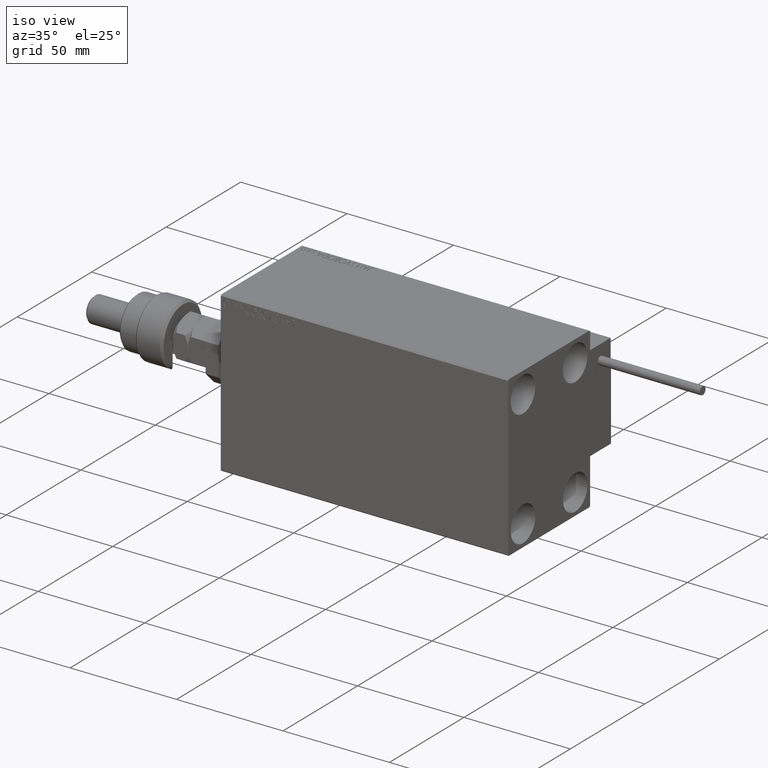
[diagram: clean part render]
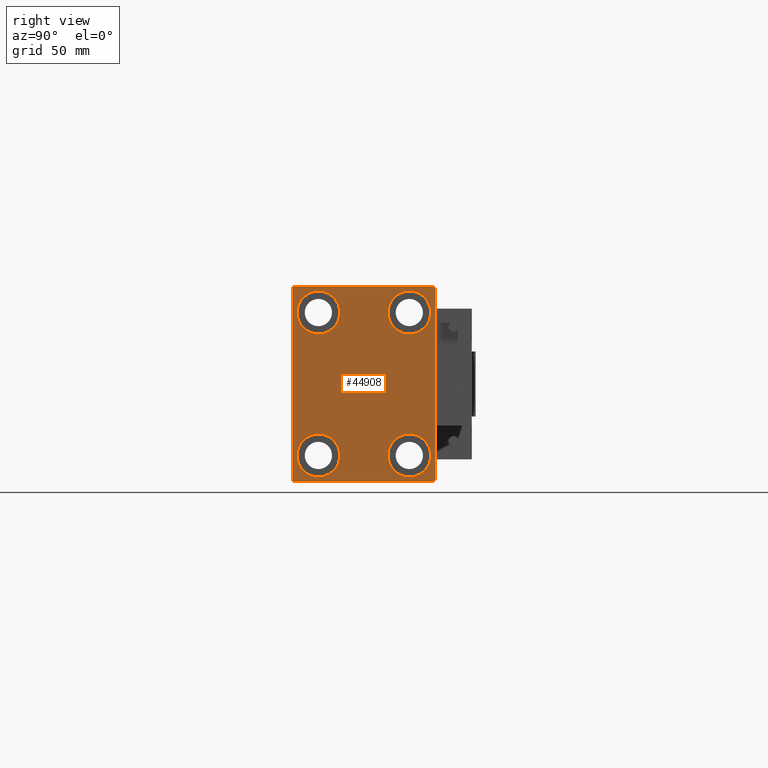
[diagram: tour spotlight — one face highlighted and labeled with its STEP entity id]
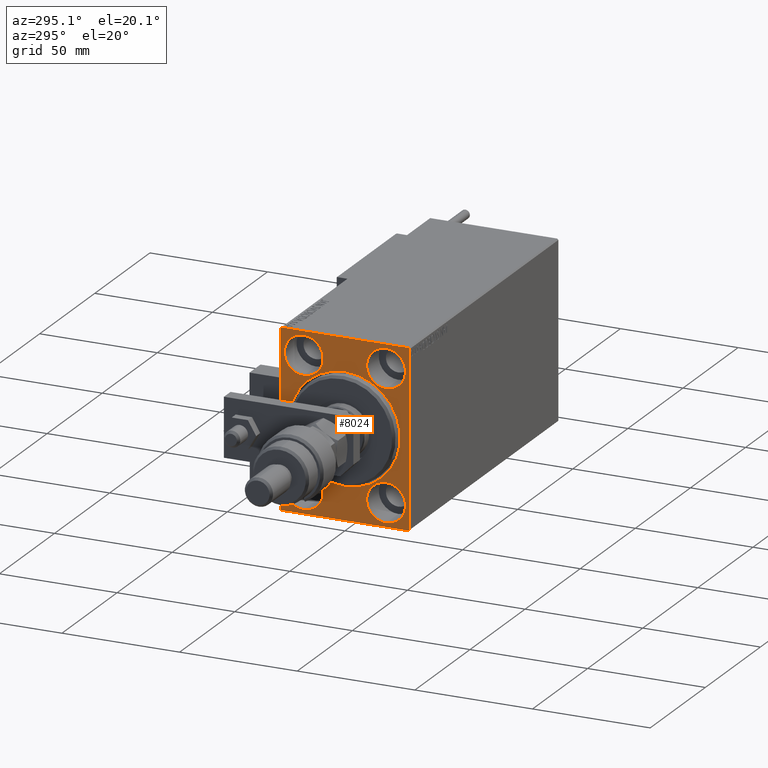
[diagram: tour spotlight — one face highlighted and labeled with its STEP entity id]
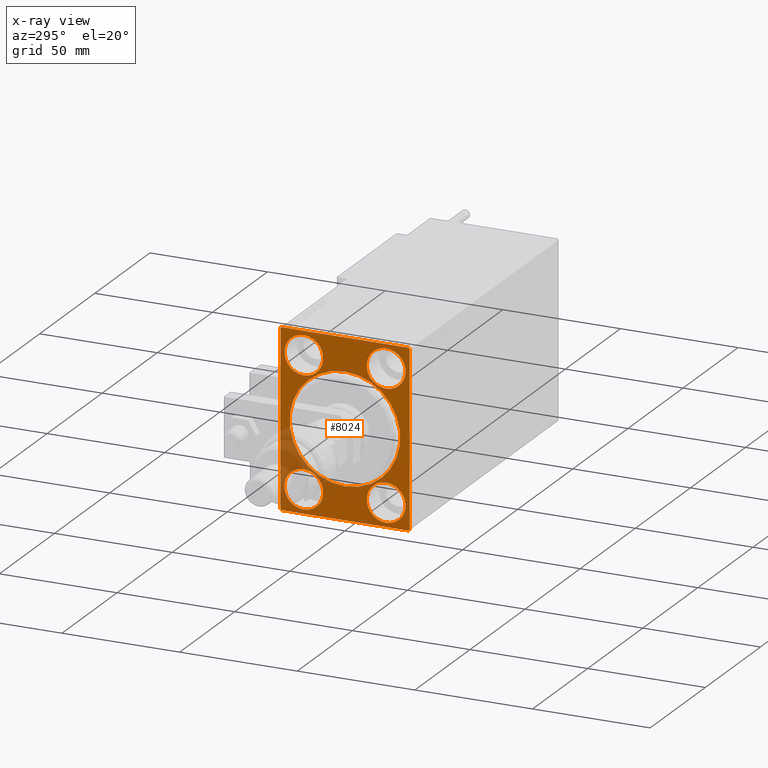
[diagram: x-ray of the same camera — body ghosted, this tour face saturated]
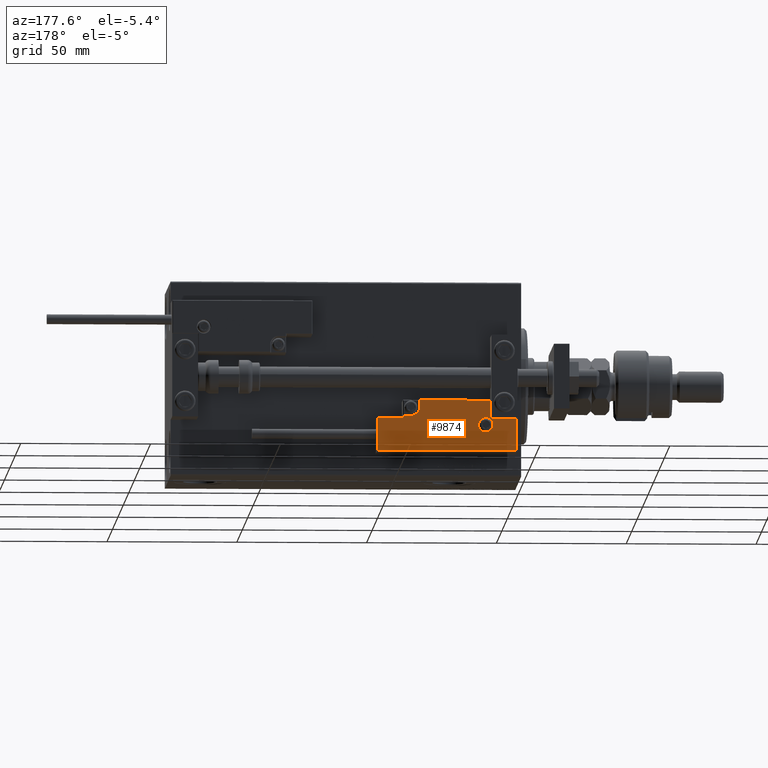
[diagram: tour spotlight — one face highlighted and labeled with its STEP entity id]
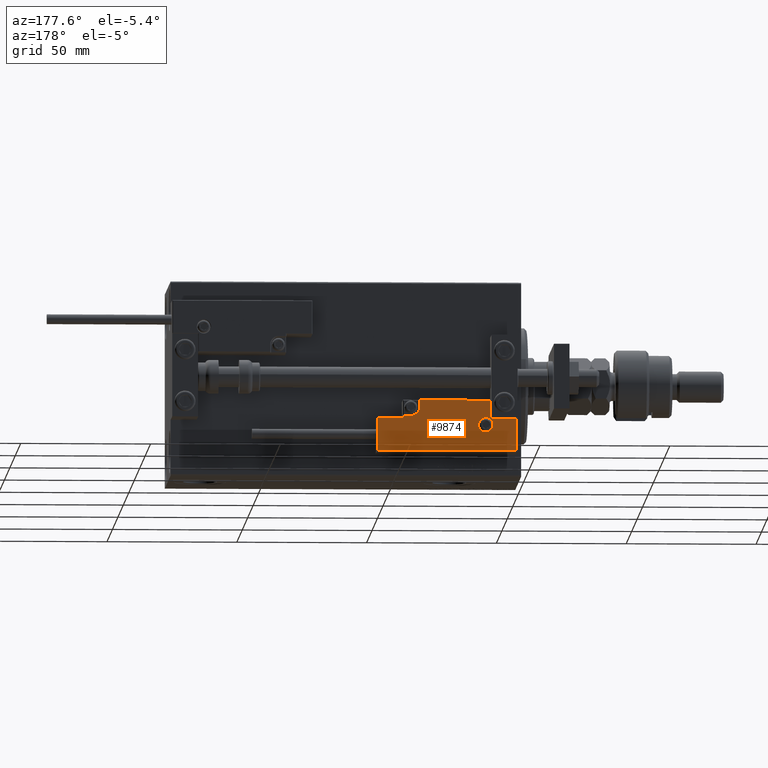
[diagram: tour spotlight — one face highlighted and labeled with its STEP entity id]
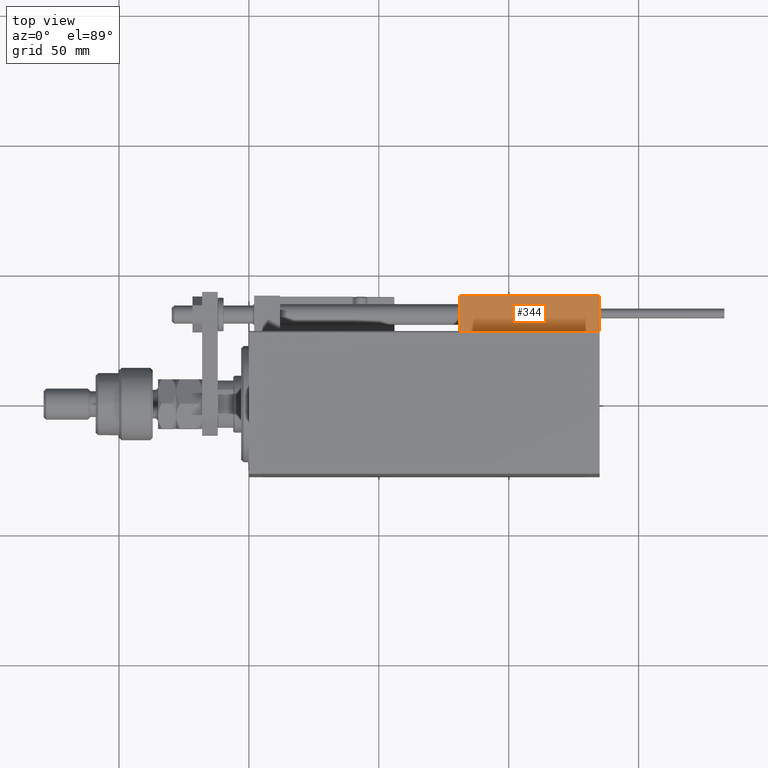
[diagram: tour spotlight — one face highlighted and labeled with its STEP entity id]
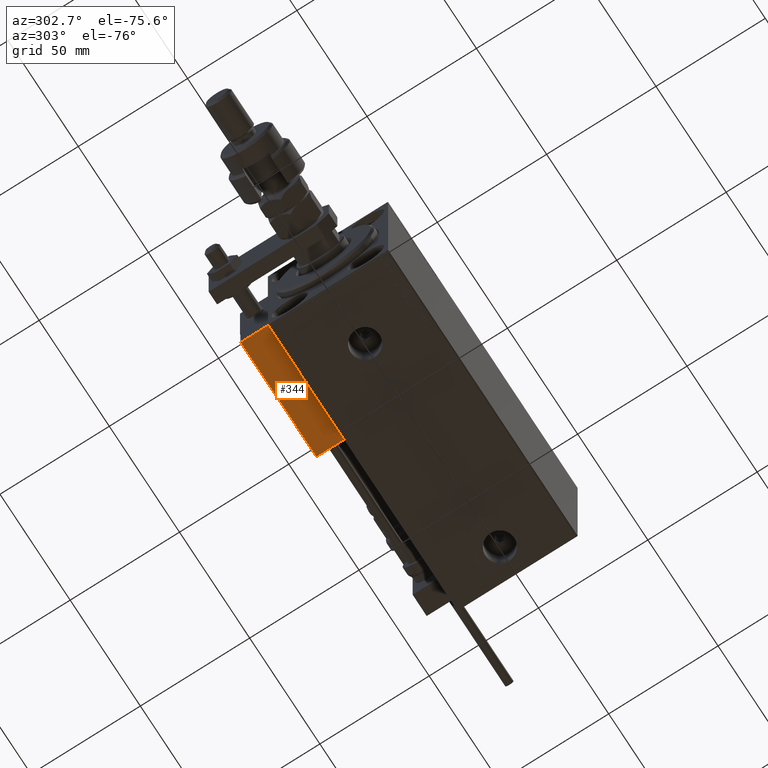
[diagram: tour spotlight — one face highlighted and labeled with its STEP entity id]
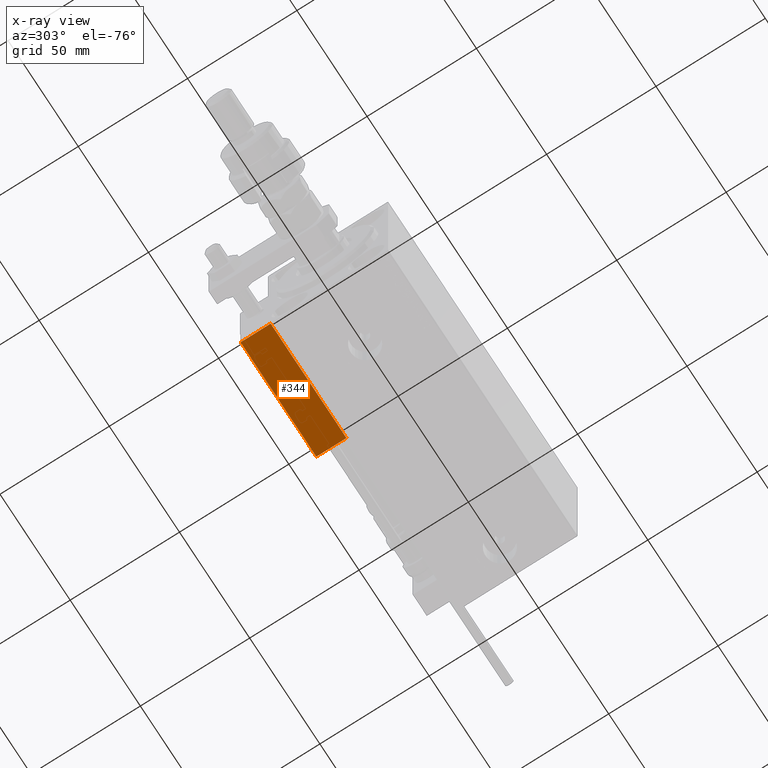
[diagram: x-ray of the same camera — body ghosted, this tour face saturated]
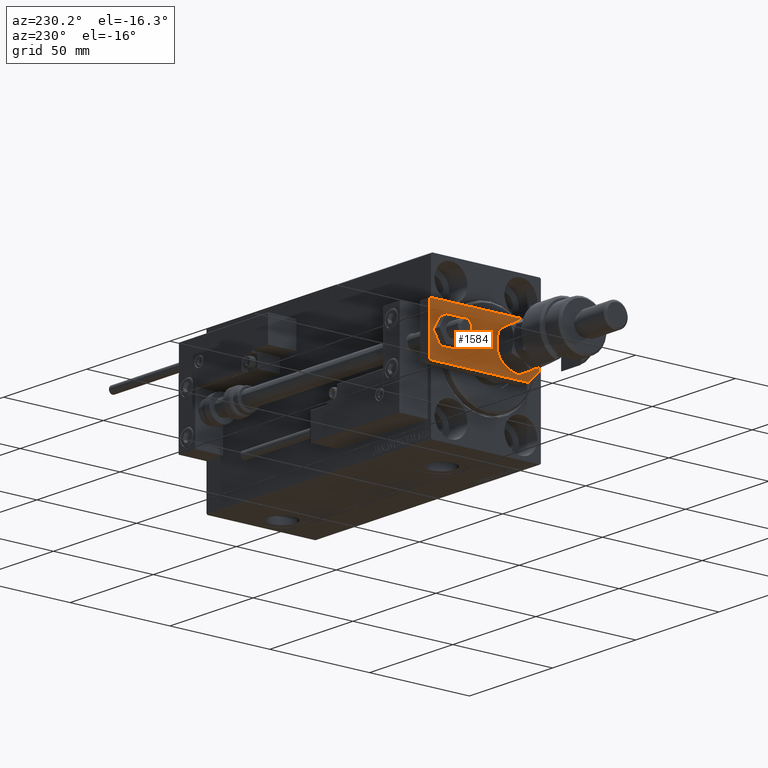
[diagram: tour spotlight — one face highlighted and labeled with its STEP entity id]
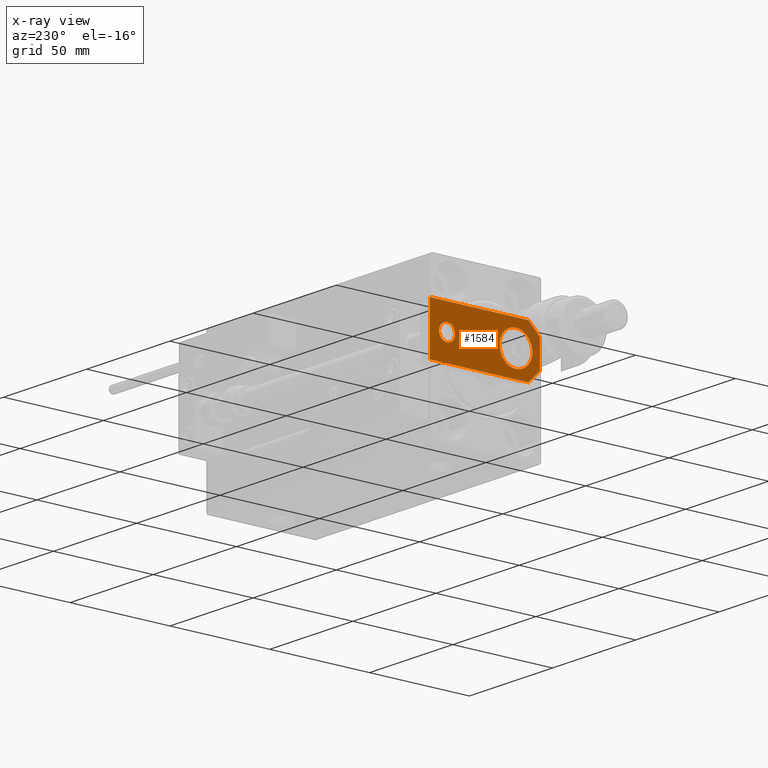
[diagram: x-ray of the same camera — body ghosted, this tour face saturated]
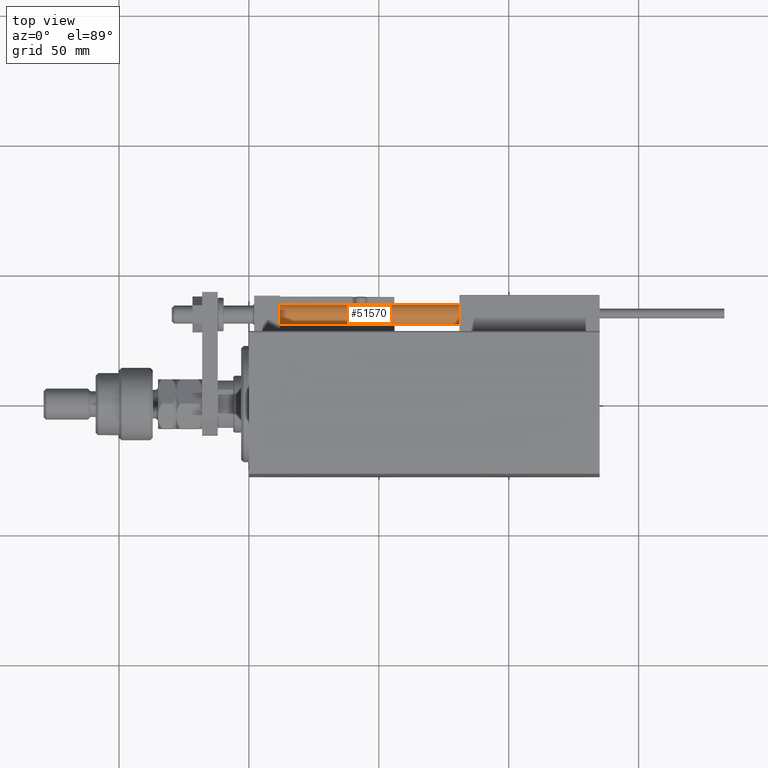
[diagram: tour spotlight — one face highlighted and labeled with its STEP entity id]
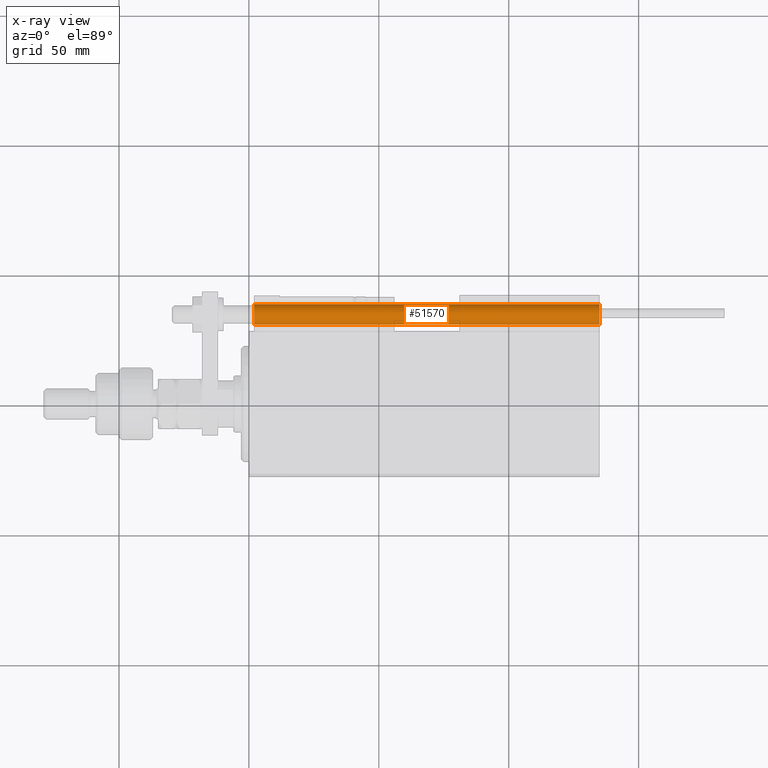
[diagram: x-ray of the same camera — body ghosted, this tour face saturated]
A machine part: a face-by-face anatomy tour. The part has 1367 B-rep faces; the first image is the clean iso view, then the 8 largest visible faces are spotlighted one at a time (largest first), each with its STEP entity span.

Face 1 — right view, entity #44908. In plain terms, the highlighted planar face has unit normal (1, 0, 0).
Definition (entity closure, byte-faithful):
#22 = AXIS2_PLACEMENT_3D ( 'NONE', #19158, #30990, #19676 ) ;
#688 = EDGE_CURVE ( 'NONE', #52491, #42628, #13147, .T. ) ;
#829 = DIRECTION ( 'NONE',  ( 0.000000000000000000, 0.000000000000000000, 1.000000000000000000 ) ) ;
#845 = ORIENTED_EDGE ( 'NONE', *, *, #39814, .T. ) ;
#1208 = VECTOR ( 'NONE', #25565, 1000.000000000000114 ) ;
#1635 = CARTESIAN_POINT ( 'NONE',  ( 135.0000000000000000, -27.50000000000000355, 37.50000000000000000 ) ) ;
#1861 = EDGE_CURVE ( 'NONE', #48627, #37381, #22477, .T. ) ;
#2055 = DIRECTION ( 'NONE',  ( 0.000000000000000000, -1.000000000000000000, -1.261617073437677999E-16 ) ) ;
#2382 = DIRECTION ( 'NONE',  ( 0.000000000000000000, 0.000000000000000000, 1.000000000000000000 ) ) ;
#2445 = VERTEX_POINT ( 'NONE', #6165 ) ;
#3166 = ORIENTED_EDGE ( 'NONE', *, *, #688, .T. ) ;
#3284 = CARTESIAN_POINT ( 'NONE',  ( 135.0000000000000000, 0.000000000000000000, 0.000000000000000000 ) ) ;
#4070 = DIRECTION ( 'NONE',  ( 0.000000000000000000, 0.000000000000000000, 1.000000000000000000 ) ) ;
#4108 = CARTESIAN_POINT ( 'NONE',  ( 135.0000000000000000, 32.25000000000000711, -32.25000000000000711 ) ) ;
#4335 = DIRECTION ( 'NONE',  ( -1.000000000000000000, -0.000000000000000000, -0.000000000000000000 ) ) ;
#4750 = VERTEX_POINT ( 'NONE', #18023 ) ;
#5028 = EDGE_CURVE ( 'NONE', #2445, #28801, #52249, .T. ) ;
#5279 = CARTESIAN_POINT ( 'NONE',  ( 135.0000000000000000, 17.49999999999999645, -27.50000000000000355 ) ) ;
#5403 = DIRECTION ( 'NONE',  ( 0.000000000000000000, 0.000000000000000000, -1.000000000000000000 ) ) ;
#5671 = VERTEX_POINT ( 'NONE', #15913 ) ;
#5717 = ORIENTED_EDGE ( 'NONE', *, *, #25645, .T. ) ;
#6165 = CARTESIAN_POINT ( 'NONE',  ( 135.0000000000000000, -17.50000000000000355, -35.75000000000000711 ) ) ;
#6212 = AXIS2_PLACEMENT_3D ( 'NONE', #48052, #39191, #2382 ) ;
#6941 = CARTESIAN_POINT ( 'NONE',  ( 135.0000000000000000, 27.49999999999999645, 37.00000000000004263 ) ) ;
#7048 = VERTEX_POINT ( 'NONE', #18532 ) ;
#7593 = ORIENTED_EDGE ( 'NONE', *, *, #29486, .T. ) ;
#8224 = VECTOR ( 'NONE', #39614, 1000.000000000000114 ) ;
#8329 = VECTOR ( 'NONE', #18456, 1000.000000000000114 ) ;
#8628 = CARTESIAN_POINT ( 'NONE',  ( 135.0000000000000000, 17.49999999999999645, -27.50000000000000355 ) ) ;
#8674 = CARTESIAN_POINT ( 'NONE',  ( 135.0000000000000000, -17.49999999999999645, 19.25000000000000000 ) ) ;
#8803 = AXIS2_PLACEMENT_3D ( 'NONE', #3284, #39829, #52191 ) ;
#9835 = EDGE_CURVE ( 'NONE', #49964, #5671, #24908, .T. ) ;
#10054 = CIRCLE ( 'NONE', #46134, 8.250000000000000000 ) ;
#10450 = CARTESIAN_POINT ( 'NONE',  ( 135.0000000000000000, -27.50000000000000355, -37.50000000000000000 ) ) ;
#10494 = CARTESIAN_POINT ( 'NONE',  ( 135.0000000000000000, -27.00000000000001776, 37.50000000000000000 ) ) ;
#10975 = VECTOR ( 'NONE', #5403, 1000.000000000000000 ) ;
#11114 = CARTESIAN_POINT ( 'NONE',  ( 135.0000000000000000, -27.50000000000000355, 37.00000000000001421 ) ) ;
#11428 = AXIS2_PLACEMENT_3D ( 'NONE', #8628, #4335, #829 ) ;
#11871 = CARTESIAN_POINT ( 'NONE',  ( 135.0000000000000000, -17.49999999999999645, 27.49999999999999645 ) ) ;
#12507 = ORIENTED_EDGE ( 'NONE', *, *, #28864, .T. ) ;
#12541 = VERTEX_POINT ( 'NONE', #28049 ) ;
#12879 = EDGE_CURVE ( 'NONE', #28801, #2445, #31069, .T. ) ;
#13147 = LINE ( 'NONE', #45932, #15174 ) ;
#13411 = DIRECTION ( 'NONE',  ( -0.000000000000000000, -0.7071067811865524577, 0.7071067811865426878 ) ) ;
#13820 = CIRCLE ( 'NONE', #52406, 8.249999999999992895 ) ;
#13856 = ORIENTED_EDGE ( 'NONE', *, *, #14316, .T. ) ;
#13917 = CARTESIAN_POINT ( 'NONE',  ( 135.0000000000000000, -27.50000000000000355, -37.00000000000002842 ) ) ;
#14316 = EDGE_CURVE ( 'NONE', #12541, #52229, #41368, .T. ) ;
#14500 = LINE ( 'NONE', #10450, #34186 ) ;
#14622 = EDGE_LOOP ( 'NONE', ( #13856, #845 ) ) ;
#15169 = LINE ( 'NONE', #39355, #8224 ) ;
#15174 = VECTOR ( 'NONE', #13411, 1000.000000000000000 ) ;
#15352 = DIRECTION ( 'NONE',  ( -1.000000000000000000, -0.000000000000000000, -0.000000000000000000 ) ) ;
#15376 = FACE_BOUND ( 'NONE', #14622, .T. ) ;
#15632 = CARTESIAN_POINT ( 'NONE',  ( 135.0000000000000000, -27.00000000000001776, -37.50000000000000000 ) ) ;
#15913 = CARTESIAN_POINT ( 'NONE',  ( 135.0000000000000000, -17.49999999999999645, 35.74999999999999289 ) ) ;
#16156 = DIRECTION ( 'NONE',  ( -1.000000000000000000, -0.000000000000000000, -0.000000000000000000 ) ) ;
#16625 = ORIENTED_EDGE ( 'NONE', *, *, #35437, .T. ) ;
#16745 = CARTESIAN_POINT ( 'NONE',  ( 135.0000000000000000, 27.00000000000001776, -37.50000000000000000 ) ) ;
#17104 = CARTESIAN_POINT ( 'NONE',  ( 135.0000000000000000, -17.50000000000000355, -19.25000000000000355 ) ) ;
#17365 = DIRECTION ( 'NONE',  ( 0.000000000000000000, 0.000000000000000000, 1.000000000000000000 ) ) ;
#17775 = ORIENTED_EDGE ( 'NONE', *, *, #1861, .T. ) ;
#18023 = CARTESIAN_POINT ( 'NONE',  ( 135.0000000000000000, 17.49999999999999645, -35.75000000000000711 ) ) ;
#18375 = EDGE_CURVE ( 'NONE', #52152, #52491, #33654, .T. ) ;
#18456 = DIRECTION ( 'NONE',  ( -0.000000000000000000, 0.7071067811865573427, -0.7071067811865376918 ) ) ;
#18532 = CARTESIAN_POINT ( 'NONE',  ( 135.0000000000000000, 17.49999999999999645, -19.25000000000000355 ) ) ;
#19147 = PLANE ( 'NONE',  #8803 ) ;
#19158 = CARTESIAN_POINT ( 'NONE',  ( 135.0000000000000000, -17.49999999999999645, 27.49999999999999645 ) ) ;
#19676 = DIRECTION ( 'NONE',  ( 0.000000000000000000, 0.000000000000000000, 1.000000000000000000 ) ) ;
#19680 = ORIENTED_EDGE ( 'NONE', *, *, #12879, .T. ) ;
#20317 = VERTEX_POINT ( 'NONE', #16745 ) ;
#20354 = AXIS2_PLACEMENT_3D ( 'NONE', #11871, #40883, #4070 ) ;
#20449 = ORIENTED_EDGE ( 'NONE', *, *, #29667, .T. ) ;
#20842 = CARTESIAN_POINT ( 'NONE',  ( 135.0000000000000000, -17.50000000000000355, -27.50000000000000355 ) ) ;
#21451 = EDGE_CURVE ( 'NONE', #20317, #52152, #36895, .T. ) ;
#21657 = LINE ( 'NONE', #50968, #39265 ) ;
#22477 = LINE ( 'NONE', #38884, #8329 ) ;
#23423 = CIRCLE ( 'NONE', #11428, 8.250000000000000000 ) ;
#24908 = CIRCLE ( 'NONE', #22, 8.249999999999992895 ) ;
#25528 = LINE ( 'NONE', #1635, #10975 ) ;
#25565 = DIRECTION ( 'NONE',  ( -0.000000000000000000, 0.7071067811865474617, 0.7071067811865474617 ) ) ;
#25645 = EDGE_CURVE ( 'NONE', #46110, #39557, #15169, .T. ) ;
#28049 = CARTESIAN_POINT ( 'NONE',  ( 135.0000000000000000, 17.50000000000000355, 19.25000000000000000 ) ) ;
#28742 = EDGE_CURVE ( 'NONE', #4750, #7048, #10054, .T. ) ;
#28801 = VERTEX_POINT ( 'NONE', #17104 ) ;
#28864 = EDGE_CURVE ( 'NONE', #42628, #46110, #21657, .T. ) ;
#29177 = DIRECTION ( 'NONE',  ( -1.000000000000000000, -0.000000000000000000, -0.000000000000000000 ) ) ;
#29445 = DIRECTION ( 'NONE',  ( 0.000000000000000000, 0.000000000000000000, 1.000000000000000000 ) ) ;
#29486 = EDGE_CURVE ( 'NONE', #5671, #49964, #32389, .T. ) ;
#29667 = EDGE_CURVE ( 'NONE', #39557, #48627, #25528, .T. ) ;
#30604 = EDGE_LOOP ( 'NONE', ( #12507, #5717, #20449, #17775, #16625, #50294, #31595, #3166 ) ) ;
#30990 = DIRECTION ( 'NONE',  ( -1.000000000000000000, -0.000000000000000000, -0.000000000000000000 ) ) ;
#31069 = CIRCLE ( 'NONE', #31914, 8.250000000000000000 ) ;
#31246 = EDGE_LOOP ( 'NONE', ( #34012, #19680 ) ) ;
#31595 = ORIENTED_EDGE ( 'NONE', *, *, #18375, .T. ) ;
#31914 = AXIS2_PLACEMENT_3D ( 'NONE', #52980, #16156, #37634 ) ;
#32044 = CARTESIAN_POINT ( 'NONE',  ( 135.0000000000000000, 27.50000000000000355, -37.00000000000001421 ) ) ;
#32106 = VECTOR ( 'NONE', #41982, 1000.000000000000000 ) ;
#32389 = CIRCLE ( 'NONE', #20354, 8.249999999999992895 ) ;
#32970 = DIRECTION ( 'NONE',  ( -1.000000000000000000, -0.000000000000000000, -0.000000000000000000 ) ) ;
#33654 = LINE ( 'NONE', #45755, #32106 ) ;
#34012 = ORIENTED_EDGE ( 'NONE', *, *, #5028, .T. ) ;
#34022 = ORIENTED_EDGE ( 'NONE', *, *, #9835, .T. ) ;
#34186 = VECTOR ( 'NONE', #43261, 1000.000000000000000 ) ;
#35277 = FACE_BOUND ( 'NONE', #48158, .T. ) ;
#35437 = EDGE_CURVE ( 'NONE', #37381, #20317, #14500, .T. ) ;
#36895 = LINE ( 'NONE', #4108, #1208 ) ;
#37379 = CARTESIAN_POINT ( 'NONE',  ( 135.0000000000000000, 17.50000000000000355, 35.74999999999999289 ) ) ;
#37381 = VERTEX_POINT ( 'NONE', #15632 ) ;
#37634 = DIRECTION ( 'NONE',  ( 0.000000000000000000, 0.000000000000000000, 1.000000000000000000 ) ) ;
#38884 = CARTESIAN_POINT ( 'NONE',  ( 135.0000000000000000, -32.24999999999963052, -32.25000000000052580 ) ) ;
#39022 = DIRECTION ( 'NONE',  ( 0.000000000000000000, 0.000000000000000000, 1.000000000000000000 ) ) ;
#39191 = DIRECTION ( 'NONE',  ( -1.000000000000000000, -0.000000000000000000, -0.000000000000000000 ) ) ;
#39265 = VECTOR ( 'NONE', #2055, 1000.000000000000000 ) ;
#39355 = CARTESIAN_POINT ( 'NONE',  ( 135.0000000000000000, -32.25000000000000711, 32.25000000000000711 ) ) ;
#39557 = VERTEX_POINT ( 'NONE', #11114 ) ;
#39565 = FACE_OUTER_BOUND ( 'NONE', #30604, .T. ) ;
#39614 = DIRECTION ( 'NONE',  ( 0.000000000000000000, -0.7071067811865474617, -0.7071067811865474617 ) ) ;
#39814 = EDGE_CURVE ( 'NONE', #52229, #12541, #13820, .T. ) ;
#39829 = DIRECTION ( 'NONE',  ( 1.000000000000000000, 0.000000000000000000, 0.000000000000000000 ) ) ;
#40883 = DIRECTION ( 'NONE',  ( -1.000000000000000000, -0.000000000000000000, -0.000000000000000000 ) ) ;
#41368 = CIRCLE ( 'NONE', #6212, 8.249999999999992895 ) ;
#41982 = DIRECTION ( 'NONE',  ( 0.000000000000000000, -9.251858538542970348E-17, 1.000000000000000000 ) ) ;
#42509 = ORIENTED_EDGE ( 'NONE', *, *, #28742, .T. ) ;
#42628 = VERTEX_POINT ( 'NONE', #46751 ) ;
#43261 = DIRECTION ( 'NONE',  ( 0.000000000000000000, 1.000000000000000000, 0.000000000000000000 ) ) ;
#44686 = EDGE_LOOP ( 'NONE', ( #34022, #7593 ) ) ;
#44908 = ADVANCED_FACE ( 'NONE', ( #35277, #52459, #15376, #48430, #39565 ), #19147, .T. ) ;
#45014 = EDGE_CURVE ( 'NONE', #7048, #4750, #23423, .T. ) ;
#45755 = CARTESIAN_POINT ( 'NONE',  ( 135.0000000000000000, 27.50000000000000355, -37.50000000000000000 ) ) ;
#45932 = CARTESIAN_POINT ( 'NONE',  ( 135.0000000000000000, 32.24999999999982947, 32.25000000000027001 ) ) ;
#46110 = VERTEX_POINT ( 'NONE', #10494 ) ;
#46134 = AXIS2_PLACEMENT_3D ( 'NONE', #5279, #32970, #17365 ) ;
#46751 = CARTESIAN_POINT ( 'NONE',  ( 135.0000000000000000, 27.00000000000002487, 37.50000000000000711 ) ) ;
#48052 = CARTESIAN_POINT ( 'NONE',  ( 135.0000000000000000, 17.50000000000000355, 27.49999999999999645 ) ) ;
#48158 = EDGE_LOOP ( 'NONE', ( #42509, #51149 ) ) ;
#48430 = FACE_BOUND ( 'NONE', #31246, .T. ) ;
#48627 = VERTEX_POINT ( 'NONE', #13917 ) ;
#48788 = AXIS2_PLACEMENT_3D ( 'NONE', #20842, #29177, #29445 ) ;
#49964 = VERTEX_POINT ( 'NONE', #8674 ) ;
#50048 = CARTESIAN_POINT ( 'NONE',  ( 135.0000000000000000, 17.50000000000000355, 27.49999999999999645 ) ) ;
#50294 = ORIENTED_EDGE ( 'NONE', *, *, #21451, .T. ) ;
#50968 = CARTESIAN_POINT ( 'NONE',  ( 135.0000000000000000, 27.49999999999999645, 37.50000000000000711 ) ) ;
#51149 = ORIENTED_EDGE ( 'NONE', *, *, #45014, .T. ) ;
#52152 = VERTEX_POINT ( 'NONE', #32044 ) ;
#52191 = DIRECTION ( 'NONE',  ( 0.000000000000000000, 0.000000000000000000, -1.000000000000000000 ) ) ;
#52229 = VERTEX_POINT ( 'NONE', #37379 ) ;
#52249 = CIRCLE ( 'NONE', #48788, 8.250000000000000000 ) ;
#52406 = AXIS2_PLACEMENT_3D ( 'NONE', #50048, #15352, #39022 ) ;
#52459 = FACE_BOUND ( 'NONE', #44686, .T. ) ;
#52491 = VERTEX_POINT ( 'NONE', #6941 ) ;
#52980 = CARTESIAN_POINT ( 'NONE',  ( 135.0000000000000000, -17.50000000000000355, -27.50000000000000355 ) ) ;

Face 2 — auxiliary view, entity #8024. An x-ray twin of the same camera follows (body ghosted, this face saturated) — the face is partly hidden behind the body. In plain terms, the highlighted planar face has unit normal (1, 0, 0).
Definition (entity closure, byte-faithful):
#159 = CARTESIAN_POINT ( 'NONE',  ( 0.000000000000000000, 17.50000000000000355, 35.74999999999999289 ) ) ;
#174 = AXIS2_PLACEMENT_3D ( 'NONE', #28185, #37569, #33277 ) ;
#191 = VERTEX_POINT ( 'NONE', #26756 ) ;
#257 = CARTESIAN_POINT ( 'NONE',  ( 0.000000000000000000, -17.49999999999999645, 19.25000000000000000 ) ) ;
#1018 = EDGE_CURVE ( 'NONE', #44990, #33820, #13519, .T. ) ;
#1723 = VERTEX_POINT ( 'NONE', #21407 ) ;
#1798 = VERTEX_POINT ( 'NONE', #26509 ) ;
#2525 = DIRECTION ( 'NONE',  ( 0.000000000000000000, 0.000000000000000000, -1.000000000000000000 ) ) ;
#2535 = LINE ( 'NONE', #9788, #32098 ) ;
#4024 = ORIENTED_EDGE ( 'NONE', *, *, #1018, .F. ) ;
#4845 = FACE_OUTER_BOUND ( 'NONE', #32063, .T. ) ;
#5258 = VERTEX_POINT ( 'NONE', #40171 ) ;
#5768 = DIRECTION ( 'NONE',  ( 0.000000000000000000, 0.000000000000000000, -1.000000000000000000 ) ) ;
#5947 = CARTESIAN_POINT ( 'NONE',  ( 0.000000000000000000, -17.50000000000000355, -27.50000000000000355 ) ) ;
#6345 = ORIENTED_EDGE ( 'NONE', *, *, #34458, .F. ) ;
#6552 = VECTOR ( 'NONE', #44191, 1000.000000000000114 ) ;
#6930 = ORIENTED_EDGE ( 'NONE', *, *, #20187, .F. ) ;
#7016 = CARTESIAN_POINT ( 'NONE',  ( 0.000000000000000000, -27.50000000000000355, -37.50000000000000000 ) ) ;
#7834 = PLANE ( 'NONE',  #21417 ) ;
#7864 = VECTOR ( 'NONE', #27149, 1000.000000000000000 ) ;
#7926 = EDGE_CURVE ( 'NONE', #5258, #50956, #49723, .T. ) ;
#8024 = ADVANCED_FACE ( 'NONE', ( #44648, #37359, #28238, #12912, #20163, #4845 ), #7834, .F. ) ;
#8092 = DIRECTION ( 'NONE',  ( 1.000000000000000000, 0.000000000000000000, 0.000000000000000000 ) ) ;
#8123 = VERTEX_POINT ( 'NONE', #33876 ) ;
#8655 = CARTESIAN_POINT ( 'NONE',  ( 0.000000000000000000, 17.49999999999999645, -27.50000000000000355 ) ) ;
#9788 = CARTESIAN_POINT ( 'NONE',  ( 0.000000000000000000, 27.50000000000000355, -37.00000000000001421 ) ) ;
#11048 = LINE ( 'NONE', #35522, #27493 ) ;
#11184 = EDGE_CURVE ( 'NONE', #46523, #13960, #31207, .T. ) ;
#12105 = AXIS2_PLACEMENT_3D ( 'NONE', #42734, #33331, #46238 ) ;
#12258 = AXIS2_PLACEMENT_3D ( 'NONE', #52540, #44479, #32907 ) ;
#12487 = CARTESIAN_POINT ( 'NONE',  ( 0.000000000000000000, 27.50000000000000355, -37.50000000000000000 ) ) ;
#12538 = DIRECTION ( 'NONE',  ( -1.000000000000000000, 0.000000000000000000, 0.000000000000000000 ) ) ;
#12635 = DIRECTION ( 'NONE',  ( 0.000000000000000000, -1.000000000000000000, -1.261617073437677999E-16 ) ) ;
#12701 = LINE ( 'NONE', #36909, #6552 ) ;
#12912 = FACE_BOUND ( 'NONE', #42146, .T. ) ;
#13282 = EDGE_CURVE ( 'NONE', #1723, #27089, #49050, .T. ) ;
#13519 = CIRCLE ( 'NONE', #51279, 8.250000000000000000 ) ;
#13555 = ORIENTED_EDGE ( 'NONE', *, *, #46100, .F. ) ;
#13692 = VECTOR ( 'NONE', #12635, 1000.000000000000000 ) ;
#13960 = VERTEX_POINT ( 'NONE', #14273 ) ;
#14015 = DIRECTION ( 'NONE',  ( -1.000000000000000000, 0.000000000000000000, 0.000000000000000000 ) ) ;
#14095 = DIRECTION ( 'NONE',  ( 0.000000000000000000, -0.7071067811865474617, -0.7071067811865474617 ) ) ;
#14233 = EDGE_LOOP ( 'NONE', ( #24230, #19016 ) ) ;
#14273 = CARTESIAN_POINT ( 'NONE',  ( 0.000000000000000000, 27.00000000000001776, -37.50000000000000000 ) ) ;
#14484 = AXIS2_PLACEMENT_3D ( 'NONE', #26957, #52219, #2525 ) ;
#14831 = EDGE_CURVE ( 'NONE', #31909, #49083, #37107, .T. ) ;
#15613 = VECTOR ( 'NONE', #23068, 1000.000000000000000 ) ;
#16704 = CIRCLE ( 'NONE', #20944, 23.50000000000000355 ) ;
#18547 = CARTESIAN_POINT ( 'NONE',  ( 0.000000000000000000, 17.50000000000000355, 27.49999999999999645 ) ) ;
#19016 = ORIENTED_EDGE ( 'NONE', *, *, #52536, .T. ) ;
#20163 = FACE_BOUND ( 'NONE', #23274, .T. ) ;
#20187 = EDGE_CURVE ( 'NONE', #25156, #191, #34267, .T. ) ;
#20632 = CARTESIAN_POINT ( 'NONE',  ( 0.000000000000000000, 2.877919977996280715E-15, -23.50000000000000355 ) ) ;
#20944 = AXIS2_PLACEMENT_3D ( 'NONE', #34524, #34793, #5768 ) ;
#21205 = EDGE_CURVE ( 'NONE', #1798, #13960, #2535, .T. ) ;
#21323 = ORIENTED_EDGE ( 'NONE', *, *, #25835, .T. ) ;
#21407 = CARTESIAN_POINT ( 'NONE',  ( 0.000000000000000000, 17.50000000000000355, 19.25000000000000000 ) ) ;
#21417 = AXIS2_PLACEMENT_3D ( 'NONE', #24474, #8092, #37629 ) ;
#21513 = ORIENTED_EDGE ( 'NONE', *, *, #51257, .F. ) ;
#21988 = CARTESIAN_POINT ( 'NONE',  ( 0.000000000000000000, -27.00000000000001776, -37.50000000000000000 ) ) ;
#23058 = VERTEX_POINT ( 'NONE', #35459 ) ;
#23068 = DIRECTION ( 'NONE',  ( 0.000000000000000000, -9.251858538542970348E-17, 1.000000000000000000 ) ) ;
#23274 = EDGE_LOOP ( 'NONE', ( #6345, #13555 ) ) ;
#23456 = VECTOR ( 'NONE', #28317, 1000.000000000000000 ) ;
#24230 = ORIENTED_EDGE ( 'NONE', *, *, #31541, .T. ) ;
#24406 = DIRECTION ( 'NONE',  ( -1.000000000000000000, 0.000000000000000000, 0.000000000000000000 ) ) ;
#24474 = CARTESIAN_POINT ( 'NONE',  ( 0.000000000000000000, 0.000000000000000000, 0.000000000000000000 ) ) ;
#24506 = VERTEX_POINT ( 'NONE', #52302 ) ;
#25156 = VERTEX_POINT ( 'NONE', #52964 ) ;
#25561 = AXIS2_PLACEMENT_3D ( 'NONE', #49360, #12538, #28925 ) ;
#25835 = EDGE_CURVE ( 'NONE', #25156, #50956, #12701, .T. ) ;
#25977 = ORIENTED_EDGE ( 'NONE', *, *, #21205, .T. ) ;
#26121 = LINE ( 'NONE', #42802, #27380 ) ;
#26509 = CARTESIAN_POINT ( 'NONE',  ( 0.000000000000000000, 27.50000000000000355, -37.00000000000001421 ) ) ;
#26701 = ORIENTED_EDGE ( 'NONE', *, *, #39847, .T. ) ;
#26756 = CARTESIAN_POINT ( 'NONE',  ( 0.000000000000000000, -27.50000000000000355, -37.00000000000002842 ) ) ;
#26957 = CARTESIAN_POINT ( 'NONE',  ( 0.000000000000000000, 0.000000000000000000, 0.000000000000000000 ) ) ;
#27089 = VERTEX_POINT ( 'NONE', #159 ) ;
#27149 = DIRECTION ( 'NONE',  ( 0.000000000000000000, 1.000000000000000000, 0.000000000000000000 ) ) ;
#27303 = ORIENTED_EDGE ( 'NONE', *, *, #40899, .F. ) ;
#27380 = VECTOR ( 'NONE', #51133, 1000.000000000000114 ) ;
#27493 = VECTOR ( 'NONE', #43587, 1000.000000000000000 ) ;
#27528 = CIRCLE ( 'NONE', #12105, 8.250000000000000000 ) ;
#27793 = CIRCLE ( 'NONE', #46731, 8.249999999999992895 ) ;
#28185 = CARTESIAN_POINT ( 'NONE',  ( 0.000000000000000000, 17.50000000000000355, 27.49999999999999645 ) ) ;
#28238 = FACE_BOUND ( 'NONE', #43044, .T. ) ;
#28317 = DIRECTION ( 'NONE',  ( 0.000000000000000000, 0.000000000000000000, -1.000000000000000000 ) ) ;
#28925 = DIRECTION ( 'NONE',  ( 0.000000000000000000, 0.000000000000000000, 1.000000000000000000 ) ) ;
#29983 = CARTESIAN_POINT ( 'NONE',  ( 0.000000000000000000, 17.49999999999999645, -19.25000000000000355 ) ) ;
#31207 = LINE ( 'NONE', #7016, #7864 ) ;
#31501 = CARTESIAN_POINT ( 'NONE',  ( 0.000000000000000000, 17.49999999999999645, -35.75000000000000711 ) ) ;
#31541 = EDGE_CURVE ( 'NONE', #8123, #51352, #38487, .T. ) ;
#31909 = VERTEX_POINT ( 'NONE', #257 ) ;
#32028 = CIRCLE ( 'NONE', #32913, 8.250000000000000000 ) ;
#32063 = EDGE_LOOP ( 'NONE', ( #6930, #21323, #42107, #26701, #50448, #25977, #46723, #38239 ) ) ;
#32098 = VECTOR ( 'NONE', #14095, 1000.000000000000114 ) ;
#32907 = DIRECTION ( 'NONE',  ( 0.000000000000000000, 0.000000000000000000, 1.000000000000000000 ) ) ;
#32913 = AXIS2_PLACEMENT_3D ( 'NONE', #5947, #14015, #43037 ) ;
#33277 = DIRECTION ( 'NONE',  ( 0.000000000000000000, 0.000000000000000000, 1.000000000000000000 ) ) ;
#33331 = DIRECTION ( 'NONE',  ( -1.000000000000000000, 0.000000000000000000, 0.000000000000000000 ) ) ;
#33820 = VERTEX_POINT ( 'NONE', #29983 ) ;
#33876 = CARTESIAN_POINT ( 'NONE',  ( 0.000000000000000000, 0.000000000000000000, 23.50000000000000355 ) ) ;
#34267 = LINE ( 'NONE', #46635, #23456 ) ;
#34458 = EDGE_CURVE ( 'NONE', #23058, #51160, #52297, .T. ) ;
#34524 = CARTESIAN_POINT ( 'NONE',  ( 0.000000000000000000, 0.000000000000000000, 0.000000000000000000 ) ) ;
#34793 = DIRECTION ( 'NONE',  ( 1.000000000000000000, 0.000000000000000000, 0.000000000000000000 ) ) ;
#34933 = DIRECTION ( 'NONE',  ( -1.000000000000000000, 0.000000000000000000, 0.000000000000000000 ) ) ;
#35438 = AXIS2_PLACEMENT_3D ( 'NONE', #40540, #24406, #44579 ) ;
#35459 = CARTESIAN_POINT ( 'NONE',  ( 0.000000000000000000, -17.50000000000000355, -19.25000000000000355 ) ) ;
#35522 = CARTESIAN_POINT ( 'NONE',  ( 0.000000000000000000, 27.00000000000002487, 37.50000000000000711 ) ) ;
#36909 = CARTESIAN_POINT ( 'NONE',  ( 0.000000000000000000, -27.50000000000000355, 37.00000000000001421 ) ) ;
#37107 = CIRCLE ( 'NONE', #12258, 8.249999999999992895 ) ;
#37228 = EDGE_CURVE ( 'NONE', #46523, #191, #26121, .T. ) ;
#37359 = FACE_BOUND ( 'NONE', #39104, .T. ) ;
#37569 = DIRECTION ( 'NONE',  ( -1.000000000000000000, 0.000000000000000000, 0.000000000000000000 ) ) ;
#37629 = DIRECTION ( 'NONE',  ( 0.000000000000000000, 0.000000000000000000, -1.000000000000000000 ) ) ;
#38005 = CIRCLE ( 'NONE', #35438, 8.249999999999992895 ) ;
#38239 = ORIENTED_EDGE ( 'NONE', *, *, #37228, .T. ) ;
#38487 = CIRCLE ( 'NONE', #14484, 23.50000000000000355 ) ;
#39104 = EDGE_LOOP ( 'NONE', ( #27303, #4024 ) ) ;
#39847 = EDGE_CURVE ( 'NONE', #5258, #24506, #11048, .T. ) ;
#40126 = DIRECTION ( 'NONE',  ( 0.000000000000000000, 0.000000000000000000, 1.000000000000000000 ) ) ;
#40171 = CARTESIAN_POINT ( 'NONE',  ( 0.000000000000000000, 27.00000000000002487, 37.50000000000000711 ) ) ;
#40540 = CARTESIAN_POINT ( 'NONE',  ( 0.000000000000000000, -17.49999999999999645, 27.49999999999999645 ) ) ;
#40899 = EDGE_CURVE ( 'NONE', #33820, #44990, #27528, .T. ) ;
#41360 = ORIENTED_EDGE ( 'NONE', *, *, #13282, .F. ) ;
#42107 = ORIENTED_EDGE ( 'NONE', *, *, #7926, .F. ) ;
#42146 = EDGE_LOOP ( 'NONE', ( #21513, #41360 ) ) ;
#42734 = CARTESIAN_POINT ( 'NONE',  ( 0.000000000000000000, 17.49999999999999645, -27.50000000000000355 ) ) ;
#42786 = EDGE_CURVE ( 'NONE', #1798, #24506, #52096, .T. ) ;
#42802 = CARTESIAN_POINT ( 'NONE',  ( 0.000000000000000000, -27.00000000000001776, -37.50000000000000000 ) ) ;
#43037 = DIRECTION ( 'NONE',  ( 0.000000000000000000, 0.000000000000000000, 1.000000000000000000 ) ) ;
#43044 = EDGE_LOOP ( 'NONE', ( #43706, #46840 ) ) ;
#43587 = DIRECTION ( 'NONE',  ( -0.000000000000000000, 0.7071067811865524577, -0.7071067811865426878 ) ) ;
#43706 = ORIENTED_EDGE ( 'NONE', *, *, #48352, .F. ) ;
#44191 = DIRECTION ( 'NONE',  ( -0.000000000000000000, 0.7071067811865474617, 0.7071067811865474617 ) ) ;
#44479 = DIRECTION ( 'NONE',  ( -1.000000000000000000, 0.000000000000000000, 0.000000000000000000 ) ) ;
#44579 = DIRECTION ( 'NONE',  ( 0.000000000000000000, 0.000000000000000000, 1.000000000000000000 ) ) ;
#44648 = FACE_BOUND ( 'NONE', #14233, .T. ) ;
#44990 = VERTEX_POINT ( 'NONE', #31501 ) ;
#45173 = CARTESIAN_POINT ( 'NONE',  ( 0.000000000000000000, -17.50000000000000355, -35.75000000000000711 ) ) ;
#45216 = DIRECTION ( 'NONE',  ( -1.000000000000000000, 0.000000000000000000, 0.000000000000000000 ) ) ;
#45304 = CARTESIAN_POINT ( 'NONE',  ( 0.000000000000000000, -27.00000000000001776, 37.50000000000000000 ) ) ;
#45437 = CARTESIAN_POINT ( 'NONE',  ( 0.000000000000000000, -17.49999999999999645, 35.74999999999999289 ) ) ;
#46100 = EDGE_CURVE ( 'NONE', #51160, #23058, #32028, .T. ) ;
#46238 = DIRECTION ( 'NONE',  ( 0.000000000000000000, 0.000000000000000000, 1.000000000000000000 ) ) ;
#46523 = VERTEX_POINT ( 'NONE', #21988 ) ;
#46635 = CARTESIAN_POINT ( 'NONE',  ( 0.000000000000000000, -27.50000000000000355, 37.50000000000000000 ) ) ;
#46723 = ORIENTED_EDGE ( 'NONE', *, *, #11184, .F. ) ;
#46731 = AXIS2_PLACEMENT_3D ( 'NONE', #18547, #34933, #51345 ) ;
#46840 = ORIENTED_EDGE ( 'NONE', *, *, #14831, .F. ) ;
#48352 = EDGE_CURVE ( 'NONE', #49083, #31909, #38005, .T. ) ;
#49050 = CIRCLE ( 'NONE', #174, 8.249999999999992895 ) ;
#49083 = VERTEX_POINT ( 'NONE', #45437 ) ;
#49360 = CARTESIAN_POINT ( 'NONE',  ( 0.000000000000000000, -17.50000000000000355, -27.50000000000000355 ) ) ;
#49723 = LINE ( 'NONE', #52977, #13692 ) ;
#50448 = ORIENTED_EDGE ( 'NONE', *, *, #42786, .F. ) ;
#50956 = VERTEX_POINT ( 'NONE', #45304 ) ;
#51133 = DIRECTION ( 'NONE',  ( -0.000000000000000000, -0.7071067811865573427, 0.7071067811865376918 ) ) ;
#51160 = VERTEX_POINT ( 'NONE', #45173 ) ;
#51257 = EDGE_CURVE ( 'NONE', #27089, #1723, #27793, .T. ) ;
#51279 = AXIS2_PLACEMENT_3D ( 'NONE', #8655, #45216, #40126 ) ;
#51345 = DIRECTION ( 'NONE',  ( 0.000000000000000000, 0.000000000000000000, 1.000000000000000000 ) ) ;
#51352 = VERTEX_POINT ( 'NONE', #20632 ) ;
#52096 = LINE ( 'NONE', #12487, #15613 ) ;
#52219 = DIRECTION ( 'NONE',  ( 1.000000000000000000, 0.000000000000000000, 0.000000000000000000 ) ) ;
#52297 = CIRCLE ( 'NONE', #25561, 8.250000000000000000 ) ;
#52302 = CARTESIAN_POINT ( 'NONE',  ( 0.000000000000000000, 27.49999999999999645, 37.00000000000004263 ) ) ;
#52536 = EDGE_CURVE ( 'NONE', #51352, #8123, #16704, .T. ) ;
#52540 = CARTESIAN_POINT ( 'NONE',  ( 0.000000000000000000, -17.49999999999999645, 27.49999999999999645 ) ) ;
#52964 = CARTESIAN_POINT ( 'NONE',  ( 0.000000000000000000, -27.50000000000000355, 37.00000000000001421 ) ) ;
#52977 = CARTESIAN_POINT ( 'NONE',  ( 0.000000000000000000, 27.49999999999999645, 37.50000000000000711 ) ) ;

Face 3 — auxiliary view, entity #9874. In plain terms, the highlighted planar face has unit normal (0, 1, -0).
Definition (entity closure, byte-faithful):
#393 = VERTEX_POINT ( 'NONE', #47721 ) ;
#591 = ORIENTED_EDGE ( 'NONE', *, *, #31617, .T. ) ;
#912 = ORIENTED_EDGE ( 'NONE', *, *, #20708, .T. ) ;
#1546 = VECTOR ( 'NONE', #3596, 1000.000000000000000 ) ;
#1896 = CARTESIAN_POINT ( 'NONE',  ( 17.00000000000000000, 6.300000000000003375, 14.00000000000000000 ) ) ;
#2038 = VECTOR ( 'NONE', #46876, 1000.000000000000000 ) ;
#2240 = VERTEX_POINT ( 'NONE', #33855 ) ;
#2474 = AXIS2_PLACEMENT_3D ( 'NONE', #8650, #49764, #25292 ) ;
#2495 = EDGE_CURVE ( 'NONE', #393, #48747, #47803, .T. ) ;
#2503 = VERTEX_POINT ( 'NONE', #51587 ) ;
#3112 = EDGE_CURVE ( 'NONE', #44545, #43422, #15696, .T. ) ;
#3298 = CARTESIAN_POINT ( 'NONE',  ( 16.69999999999999929, 6.300000000000003375, 14.00000000000000000 ) ) ;
#3332 = CARTESIAN_POINT ( 'NONE',  ( 27.00000000000006395, 7.300000000000007816, 14.00000000000000000 ) ) ;
#3557 = CARTESIAN_POINT ( 'NONE',  ( -14.79999999999994920, 9.800000000000004263, 14.00000000000000000 ) ) ;
#3560 = ORIENTED_EDGE ( 'NONE', *, *, #23997, .T. ) ;
#3596 = DIRECTION ( 'NONE',  ( 1.000000000000000000, -0.000000000000000000, 0.000000000000000000 ) ) ;
#4086 = EDGE_LOOP ( 'NONE', ( #45712, #47509, #14589, #591, #51965, #912, #41303, #19413, #39713, #49900, #3560 ) ) ;
#4563 = EDGE_CURVE ( 'NONE', #2240, #28471, #45493, .T. ) ;
#7125 = CARTESIAN_POINT ( 'NONE',  ( 13.99999999999999822, 6.300000000000001599, 14.00000000000000000 ) ) ;
#7541 = VECTOR ( 'NONE', #22276, 1000.000000000000000 ) ;
#7855 = DIRECTION ( 'NONE',  ( 0.000000000000000000, -0.000000000000000000, -1.000000000000000000 ) ) ;
#8650 = CARTESIAN_POINT ( 'NONE',  ( 13.99999999999999822, 3.000000000000002665, 14.00000000000000000 ) ) ;
#9874 = ADVANCED_FACE ( 'NONE', ( #11084, #14869 ), #35012, .T. ) ;
#9956 = VERTEX_POINT ( 'NONE', #3298 ) ;
#10820 = DIRECTION ( 'NONE',  ( -0.000000000000000000, 0.000000000000000000, 1.000000000000000000 ) ) ;
#11084 = FACE_BOUND ( 'NONE', #33610, .T. ) ;
#12030 = AXIS2_PLACEMENT_3D ( 'NONE', #51425, #10820, #15390 ) ;
#12175 = LINE ( 'NONE', #3332, #15690 ) ;
#12224 = VERTEX_POINT ( 'NONE', #22867 ) ;
#12760 = CARTESIAN_POINT ( 'NONE',  ( -26.99999999999993605, 19.70000000000002061, 14.00000000000000000 ) ) ;
#14589 = ORIENTED_EDGE ( 'NONE', *, *, #19740, .T. ) ;
#14869 = FACE_OUTER_BOUND ( 'NONE', #4086, .T. ) ;
#14912 = VECTOR ( 'NONE', #47574, 1000.000000000000000 ) ;
#15390 = DIRECTION ( 'NONE',  ( 1.000000000000000000, 0.000000000000000000, 0.000000000000000000 ) ) ;
#15690 = VECTOR ( 'NONE', #49257, 1000.000000000000000 ) ;
#15696 = LINE ( 'NONE', #24273, #1546 ) ;
#15942 = CARTESIAN_POINT ( 'NONE',  ( -16.99999999999999289, 7.300000000000003375, 14.00000000000000000 ) ) ;
#16303 = VERTEX_POINT ( 'NONE', #50463 ) ;
#19413 = ORIENTED_EDGE ( 'NONE', *, *, #2495, .T. ) ;
#19704 = AXIS2_PLACEMENT_3D ( 'NONE', #23690, #40090, #19909 ) ;
#19740 = EDGE_CURVE ( 'NONE', #43422, #2503, #35986, .T. ) ;
#19909 = DIRECTION ( 'NONE',  ( 1.000000000000000000, 0.000000000000000000, 0.000000000000000000 ) ) ;
#20102 = CARTESIAN_POINT ( 'NONE',  ( 10.69999999999999929, 3.000000000000003109, 14.00000000000000000 ) ) ;
#20708 = EDGE_CURVE ( 'NONE', #9956, #38679, #35214, .T. ) ;
#21197 = CARTESIAN_POINT ( 'NONE',  ( 16.69999999999999929, 7.300000000000009592, 14.00000000000000000 ) ) ;
#22276 = DIRECTION ( 'NONE',  ( 0.000000000000000000, 1.000000000000000000, -0.000000000000000000 ) ) ;
#22867 = CARTESIAN_POINT ( 'NONE',  ( -16.69999999999999218, 7.300000000000003375, 14.00000000000000000 ) ) ;
#23102 = CARTESIAN_POINT ( 'NONE',  ( 16.69999999999999929, 7.000000000000009770, 14.00000000000000000 ) ) ;
#23690 = CARTESIAN_POINT ( 'NONE',  ( -14.79999999999994920, 9.800000000000004263, 14.00000000000000000 ) ) ;
#23719 = VECTOR ( 'NONE', #41741, 1000.000000000000000 ) ;
#23997 = EDGE_CURVE ( 'NONE', #16303, #12224, #36109, .T. ) ;
#24085 = VECTOR ( 'NONE', #37485, 1000.000000000000000 ) ;
#24273 = CARTESIAN_POINT ( 'NONE',  ( 11.00000000000000000, 0.3000000000000032085, 14.00000000000000000 ) ) ;
#24727 = CIRCLE ( 'NONE', #2474, 3.299999999999997158 ) ;
#25292 = DIRECTION ( 'NONE',  ( 1.000000000000000000, 0.000000000000000000, 0.000000000000000000 ) ) ;
#25327 = LINE ( 'NONE', #1896, #23719 ) ;
#25935 = CARTESIAN_POINT ( 'NONE',  ( -16.69999999999999218, 0.3000000000000032085, 14.00000000000000000 ) ) ;
#26767 = VECTOR ( 'NONE', #43585, 1000.000000000000000 ) ;
#27469 = EDGE_CURVE ( 'NONE', #51816, #9956, #25327, .T. ) ;
#28029 = DIRECTION ( 'NONE',  ( 1.000000000000000000, -1.734723475976815230E-16, 0.000000000000000000 ) ) ;
#28316 = EDGE_CURVE ( 'NONE', #28471, #2240, #34921, .T. ) ;
#28471 = VERTEX_POINT ( 'NONE', #49748 ) ;
#28923 = AXIS2_PLACEMENT_3D ( 'NONE', #3557, #7855, #40890 ) ;
#31617 = EDGE_CURVE ( 'NONE', #2503, #51816, #24727, .T. ) ;
#31679 = CARTESIAN_POINT ( 'NONE',  ( 26.70000000000006324, 20.00000000000001776, 14.00000000000000000 ) ) ;
#32275 = CARTESIAN_POINT ( 'NONE',  ( 10.69999999999999929, 0.3000000000000032085, 14.00000000000000000 ) ) ;
#33610 = EDGE_LOOP ( 'NONE', ( #49690, #44402 ) ) ;
#33855 = CARTESIAN_POINT ( 'NONE',  ( -11.99999999999994849, 9.800000000000004263, 14.00000000000000000 ) ) ;
#34921 = CIRCLE ( 'NONE', #28923, 2.800000000000000266 ) ;
#35012 = PLANE ( 'NONE',  #12030 ) ;
#35214 = LINE ( 'NONE', #23102, #14912 ) ;
#35986 = LINE ( 'NONE', #20102, #43241 ) ;
#36109 = LINE ( 'NONE', #15942, #37328 ) ;
#37216 = LINE ( 'NONE', #12760, #24085 ) ;
#37328 = VECTOR ( 'NONE', #28029, 1000.000000000000000 ) ;
#37485 = DIRECTION ( 'NONE',  ( -1.000000000000000000, 6.424901762877063495E-17, -0.000000000000000000 ) ) ;
#38679 = VERTEX_POINT ( 'NONE', #21197 ) ;
#38756 = LINE ( 'NONE', #51652, #26767 ) ;
#39713 = ORIENTED_EDGE ( 'NONE', *, *, #40261, .T. ) ;
#40090 = DIRECTION ( 'NONE',  ( 0.000000000000000000, -0.000000000000000000, -1.000000000000000000 ) ) ;
#40261 = EDGE_CURVE ( 'NONE', #48747, #51438, #37216, .T. ) ;
#40890 = DIRECTION ( 'NONE',  ( 1.000000000000000000, 0.000000000000000000, 0.000000000000000000 ) ) ;
#41303 = ORIENTED_EDGE ( 'NONE', *, *, #47938, .T. ) ;
#41741 = DIRECTION ( 'NONE',  ( 1.000000000000000000, 5.782411586589357639E-16, -0.000000000000000000 ) ) ;
#43241 = VECTOR ( 'NONE', #48607, 1000.000000000000000 ) ;
#43386 = EDGE_CURVE ( 'NONE', #12224, #44545, #38756, .T. ) ;
#43422 = VERTEX_POINT ( 'NONE', #32275 ) ;
#43585 = DIRECTION ( 'NONE',  ( 0.000000000000000000, -1.000000000000000000, 0.000000000000000000 ) ) ;
#44402 = ORIENTED_EDGE ( 'NONE', *, *, #28316, .T. ) ;
#44545 = VERTEX_POINT ( 'NONE', #25935 ) ;
#45493 = CIRCLE ( 'NONE', #19704, 2.800000000000000266 ) ;
#45712 = ORIENTED_EDGE ( 'NONE', *, *, #43386, .T. ) ;
#46876 = DIRECTION ( 'NONE',  ( -8.006416042969869188E-16, -1.000000000000000000, 0.000000000000000000 ) ) ;
#47509 = ORIENTED_EDGE ( 'NONE', *, *, #3112, .T. ) ;
#47574 = DIRECTION ( 'NONE',  ( 9.912705577010318647E-16, 1.000000000000000000, 0.000000000000000000 ) ) ;
#47721 = CARTESIAN_POINT ( 'NONE',  ( 26.70000000000006324, 7.300000000000007816, 14.00000000000000000 ) ) ;
#47803 = LINE ( 'NONE', #31679, #7541 ) ;
#47938 = EDGE_CURVE ( 'NONE', #38679, #393, #12175, .T. ) ;
#48607 = DIRECTION ( 'NONE',  ( -0.000000000000000000, 1.000000000000000000, -0.000000000000000000 ) ) ;
#48747 = VERTEX_POINT ( 'NONE', #52835 ) ;
#49257 = DIRECTION ( 'NONE',  ( 1.000000000000000000, -1.734723475976796001E-16, 0.000000000000000000 ) ) ;
#49677 = EDGE_CURVE ( 'NONE', #51438, #16303, #51708, .T. ) ;
#49690 = ORIENTED_EDGE ( 'NONE', *, *, #4563, .T. ) ;
#49748 = CARTESIAN_POINT ( 'NONE',  ( -17.59999999999994813, 9.800000000000004263, 14.00000000000000000 ) ) ;
#49764 = DIRECTION ( 'NONE',  ( 0.000000000000000000, -0.000000000000000000, -1.000000000000000000 ) ) ;
#49900 = ORIENTED_EDGE ( 'NONE', *, *, #49677, .T. ) ;
#50204 = CARTESIAN_POINT ( 'NONE',  ( -26.69999999999993534, 19.70000000000002061, 14.00000000000000000 ) ) ;
#50463 = CARTESIAN_POINT ( 'NONE',  ( -26.69999999999994600, 7.300000000000005151, 14.00000000000000000 ) ) ;
#51425 = CARTESIAN_POINT ( 'NONE',  ( 0.000000000000000000, 0.000000000000000000, 14.00000000000000000 ) ) ;
#51438 = VERTEX_POINT ( 'NONE', #50204 ) ;
#51587 = CARTESIAN_POINT ( 'NONE',  ( 10.69999999999999929, 3.000000000000003109, 14.00000000000000000 ) ) ;
#51652 = CARTESIAN_POINT ( 'NONE',  ( -16.69999999999999218, 3.252606517456513302E-15, 14.00000000000000000 ) ) ;
#51708 = LINE ( 'NONE', #51973, #2038 ) ;
#51816 = VERTEX_POINT ( 'NONE', #7125 ) ;
#51965 = ORIENTED_EDGE ( 'NONE', *, *, #27469, .T. ) ;
#51973 = CARTESIAN_POINT ( 'NONE',  ( -26.69999999999994600, 7.000000000000005329, 14.00000000000000000 ) ) ;
#52835 = CARTESIAN_POINT ( 'NONE',  ( 26.70000000000006324, 19.70000000000001705, 14.00000000000000000 ) ) ;

Face 4 — auxiliary view, entity #9874. In plain terms, the highlighted planar face has unit normal (-0, 1, -0).
Definition (entity closure, byte-faithful):
#393 = VERTEX_POINT ( 'NONE', #47721 ) ;
#591 = ORIENTED_EDGE ( 'NONE', *, *, #31617, .T. ) ;
#912 = ORIENTED_EDGE ( 'NONE', *, *, #20708, .T. ) ;
#1546 = VECTOR ( 'NONE', #3596, 1000.000000000000000 ) ;
#1896 = CARTESIAN_POINT ( 'NONE',  ( 17.00000000000000000, 6.300000000000003375, 14.00000000000000000 ) ) ;
#2038 = VECTOR ( 'NONE', #46876, 1000.000000000000000 ) ;
#2240 = VERTEX_POINT ( 'NONE', #33855 ) ;
#2474 = AXIS2_PLACEMENT_3D ( 'NONE', #8650, #49764, #25292 ) ;
#2495 = EDGE_CURVE ( 'NONE', #393, #48747, #47803, .T. ) ;
#2503 = VERTEX_POINT ( 'NONE', #51587 ) ;
#3112 = EDGE_CURVE ( 'NONE', #44545, #43422, #15696, .T. ) ;
#3298 = CARTESIAN_POINT ( 'NONE',  ( 16.69999999999999929, 6.300000000000003375, 14.00000000000000000 ) ) ;
#3332 = CARTESIAN_POINT ( 'NONE',  ( 27.00000000000006395, 7.300000000000007816, 14.00000000000000000 ) ) ;
#3557 = CARTESIAN_POINT ( 'NONE',  ( -14.79999999999994920, 9.800000000000004263, 14.00000000000000000 ) ) ;
#3560 = ORIENTED_EDGE ( 'NONE', *, *, #23997, .T. ) ;
#3596 = DIRECTION ( 'NONE',  ( 1.000000000000000000, -0.000000000000000000, 0.000000000000000000 ) ) ;
#4086 = EDGE_LOOP ( 'NONE', ( #45712, #47509, #14589, #591, #51965, #912, #41303, #19413, #39713, #49900, #3560 ) ) ;
#4563 = EDGE_CURVE ( 'NONE', #2240, #28471, #45493, .T. ) ;
#7125 = CARTESIAN_POINT ( 'NONE',  ( 13.99999999999999822, 6.300000000000001599, 14.00000000000000000 ) ) ;
#7541 = VECTOR ( 'NONE', #22276, 1000.000000000000000 ) ;
#7855 = DIRECTION ( 'NONE',  ( 0.000000000000000000, -0.000000000000000000, -1.000000000000000000 ) ) ;
#8650 = CARTESIAN_POINT ( 'NONE',  ( 13.99999999999999822, 3.000000000000002665, 14.00000000000000000 ) ) ;
#9874 = ADVANCED_FACE ( 'NONE', ( #11084, #14869 ), #35012, .T. ) ;
#9956 = VERTEX_POINT ( 'NONE', #3298 ) ;
#10820 = DIRECTION ( 'NONE',  ( -0.000000000000000000, 0.000000000000000000, 1.000000000000000000 ) ) ;
#11084 = FACE_BOUND ( 'NONE', #33610, .T. ) ;
#12030 = AXIS2_PLACEMENT_3D ( 'NONE', #51425, #10820, #15390 ) ;
#12175 = LINE ( 'NONE', #3332, #15690 ) ;
#12224 = VERTEX_POINT ( 'NONE', #22867 ) ;
#12760 = CARTESIAN_POINT ( 'NONE',  ( -26.99999999999993605, 19.70000000000002061, 14.00000000000000000 ) ) ;
#14589 = ORIENTED_EDGE ( 'NONE', *, *, #19740, .T. ) ;
#14869 = FACE_OUTER_BOUND ( 'NONE', #4086, .T. ) ;
#14912 = VECTOR ( 'NONE', #47574, 1000.000000000000000 ) ;
#15390 = DIRECTION ( 'NONE',  ( 1.000000000000000000, 0.000000000000000000, 0.000000000000000000 ) ) ;
#15690 = VECTOR ( 'NONE', #49257, 1000.000000000000000 ) ;
#15696 = LINE ( 'NONE', #24273, #1546 ) ;
#15942 = CARTESIAN_POINT ( 'NONE',  ( -16.99999999999999289, 7.300000000000003375, 14.00000000000000000 ) ) ;
#16303 = VERTEX_POINT ( 'NONE', #50463 ) ;
#19413 = ORIENTED_EDGE ( 'NONE', *, *, #2495, .T. ) ;
#19704 = AXIS2_PLACEMENT_3D ( 'NONE', #23690, #40090, #19909 ) ;
#19740 = EDGE_CURVE ( 'NONE', #43422, #2503, #35986, .T. ) ;
#19909 = DIRECTION ( 'NONE',  ( 1.000000000000000000, 0.000000000000000000, 0.000000000000000000 ) ) ;
#20102 = CARTESIAN_POINT ( 'NONE',  ( 10.69999999999999929, 3.000000000000003109, 14.00000000000000000 ) ) ;
#20708 = EDGE_CURVE ( 'NONE', #9956, #38679, #35214, .T. ) ;
#21197 = CARTESIAN_POINT ( 'NONE',  ( 16.69999999999999929, 7.300000000000009592, 14.00000000000000000 ) ) ;
#22276 = DIRECTION ( 'NONE',  ( 0.000000000000000000, 1.000000000000000000, -0.000000000000000000 ) ) ;
#22867 = CARTESIAN_POINT ( 'NONE',  ( -16.69999999999999218, 7.300000000000003375, 14.00000000000000000 ) ) ;
#23102 = CARTESIAN_POINT ( 'NONE',  ( 16.69999999999999929, 7.000000000000009770, 14.00000000000000000 ) ) ;
#23690 = CARTESIAN_POINT ( 'NONE',  ( -14.79999999999994920, 9.800000000000004263, 14.00000000000000000 ) ) ;
#23719 = VECTOR ( 'NONE', #41741, 1000.000000000000000 ) ;
#23997 = EDGE_CURVE ( 'NONE', #16303, #12224, #36109, .T. ) ;
#24085 = VECTOR ( 'NONE', #37485, 1000.000000000000000 ) ;
#24273 = CARTESIAN_POINT ( 'NONE',  ( 11.00000000000000000, 0.3000000000000032085, 14.00000000000000000 ) ) ;
#24727 = CIRCLE ( 'NONE', #2474, 3.299999999999997158 ) ;
#25292 = DIRECTION ( 'NONE',  ( 1.000000000000000000, 0.000000000000000000, 0.000000000000000000 ) ) ;
#25327 = LINE ( 'NONE', #1896, #23719 ) ;
#25935 = CARTESIAN_POINT ( 'NONE',  ( -16.69999999999999218, 0.3000000000000032085, 14.00000000000000000 ) ) ;
#26767 = VECTOR ( 'NONE', #43585, 1000.000000000000000 ) ;
#27469 = EDGE_CURVE ( 'NONE', #51816, #9956, #25327, .T. ) ;
#28029 = DIRECTION ( 'NONE',  ( 1.000000000000000000, -1.734723475976815230E-16, 0.000000000000000000 ) ) ;
#28316 = EDGE_CURVE ( 'NONE', #28471, #2240, #34921, .T. ) ;
#28471 = VERTEX_POINT ( 'NONE', #49748 ) ;
#28923 = AXIS2_PLACEMENT_3D ( 'NONE', #3557, #7855, #40890 ) ;
#31617 = EDGE_CURVE ( 'NONE', #2503, #51816, #24727, .T. ) ;
#31679 = CARTESIAN_POINT ( 'NONE',  ( 26.70000000000006324, 20.00000000000001776, 14.00000000000000000 ) ) ;
#32275 = CARTESIAN_POINT ( 'NONE',  ( 10.69999999999999929, 0.3000000000000032085, 14.00000000000000000 ) ) ;
#33610 = EDGE_LOOP ( 'NONE', ( #49690, #44402 ) ) ;
#33855 = CARTESIAN_POINT ( 'NONE',  ( -11.99999999999994849, 9.800000000000004263, 14.00000000000000000 ) ) ;
#34921 = CIRCLE ( 'NONE', #28923, 2.800000000000000266 ) ;
#35012 = PLANE ( 'NONE',  #12030 ) ;
#35214 = LINE ( 'NONE', #23102, #14912 ) ;
#35986 = LINE ( 'NONE', #20102, #43241 ) ;
#36109 = LINE ( 'NONE', #15942, #37328 ) ;
#37216 = LINE ( 'NONE', #12760, #24085 ) ;
#37328 = VECTOR ( 'NONE', #28029, 1000.000000000000000 ) ;
#37485 = DIRECTION ( 'NONE',  ( -1.000000000000000000, 6.424901762877063495E-17, -0.000000000000000000 ) ) ;
#38679 = VERTEX_POINT ( 'NONE', #21197 ) ;
#38756 = LINE ( 'NONE', #51652, #26767 ) ;
#39713 = ORIENTED_EDGE ( 'NONE', *, *, #40261, .T. ) ;
#40090 = DIRECTION ( 'NONE',  ( 0.000000000000000000, -0.000000000000000000, -1.000000000000000000 ) ) ;
#40261 = EDGE_CURVE ( 'NONE', #48747, #51438, #37216, .T. ) ;
#40890 = DIRECTION ( 'NONE',  ( 1.000000000000000000, 0.000000000000000000, 0.000000000000000000 ) ) ;
#41303 = ORIENTED_EDGE ( 'NONE', *, *, #47938, .T. ) ;
#41741 = DIRECTION ( 'NONE',  ( 1.000000000000000000, 5.782411586589357639E-16, -0.000000000000000000 ) ) ;
#43241 = VECTOR ( 'NONE', #48607, 1000.000000000000000 ) ;
#43386 = EDGE_CURVE ( 'NONE', #12224, #44545, #38756, .T. ) ;
#43422 = VERTEX_POINT ( 'NONE', #32275 ) ;
#43585 = DIRECTION ( 'NONE',  ( 0.000000000000000000, -1.000000000000000000, 0.000000000000000000 ) ) ;
#44402 = ORIENTED_EDGE ( 'NONE', *, *, #28316, .T. ) ;
#44545 = VERTEX_POINT ( 'NONE', #25935 ) ;
#45493 = CIRCLE ( 'NONE', #19704, 2.800000000000000266 ) ;
#45712 = ORIENTED_EDGE ( 'NONE', *, *, #43386, .T. ) ;
#46876 = DIRECTION ( 'NONE',  ( -8.006416042969869188E-16, -1.000000000000000000, 0.000000000000000000 ) ) ;
#47509 = ORIENTED_EDGE ( 'NONE', *, *, #3112, .T. ) ;
#47574 = DIRECTION ( 'NONE',  ( 9.912705577010318647E-16, 1.000000000000000000, 0.000000000000000000 ) ) ;
#47721 = CARTESIAN_POINT ( 'NONE',  ( 26.70000000000006324, 7.300000000000007816, 14.00000000000000000 ) ) ;
#47803 = LINE ( 'NONE', #31679, #7541 ) ;
#47938 = EDGE_CURVE ( 'NONE', #38679, #393, #12175, .T. ) ;
#48607 = DIRECTION ( 'NONE',  ( -0.000000000000000000, 1.000000000000000000, -0.000000000000000000 ) ) ;
#48747 = VERTEX_POINT ( 'NONE', #52835 ) ;
#49257 = DIRECTION ( 'NONE',  ( 1.000000000000000000, -1.734723475976796001E-16, 0.000000000000000000 ) ) ;
#49677 = EDGE_CURVE ( 'NONE', #51438, #16303, #51708, .T. ) ;
#49690 = ORIENTED_EDGE ( 'NONE', *, *, #4563, .T. ) ;
#49748 = CARTESIAN_POINT ( 'NONE',  ( -17.59999999999994813, 9.800000000000004263, 14.00000000000000000 ) ) ;
#49764 = DIRECTION ( 'NONE',  ( 0.000000000000000000, -0.000000000000000000, -1.000000000000000000 ) ) ;
#49900 = ORIENTED_EDGE ( 'NONE', *, *, #49677, .T. ) ;
#50204 = CARTESIAN_POINT ( 'NONE',  ( -26.69999999999993534, 19.70000000000002061, 14.00000000000000000 ) ) ;
#50463 = CARTESIAN_POINT ( 'NONE',  ( -26.69999999999994600, 7.300000000000005151, 14.00000000000000000 ) ) ;
#51425 = CARTESIAN_POINT ( 'NONE',  ( 0.000000000000000000, 0.000000000000000000, 14.00000000000000000 ) ) ;
#51438 = VERTEX_POINT ( 'NONE', #50204 ) ;
#51587 = CARTESIAN_POINT ( 'NONE',  ( 10.69999999999999929, 3.000000000000003109, 14.00000000000000000 ) ) ;
#51652 = CARTESIAN_POINT ( 'NONE',  ( -16.69999999999999218, 3.252606517456513302E-15, 14.00000000000000000 ) ) ;
#51708 = LINE ( 'NONE', #51973, #2038 ) ;
#51816 = VERTEX_POINT ( 'NONE', #7125 ) ;
#51965 = ORIENTED_EDGE ( 'NONE', *, *, #27469, .T. ) ;
#51973 = CARTESIAN_POINT ( 'NONE',  ( -26.69999999999994600, 7.000000000000005329, 14.00000000000000000 ) ) ;
#52835 = CARTESIAN_POINT ( 'NONE',  ( 26.70000000000006324, 19.70000000000001705, 14.00000000000000000 ) ) ;

Face 5 — top view, entity #344. In plain terms, the highlighted planar face has unit normal (-0, -0, -1).
Definition (entity closure, byte-faithful):
#344 = ADVANCED_FACE ( 'NONE', ( #32127 ), #27808, .F. ) ;
#2042 = VERTEX_POINT ( 'NONE', #34249 ) ;
#3921 = EDGE_CURVE ( 'NONE', #6162, #21933, #43997, .T. ) ;
#5847 = VECTOR ( 'NONE', #48814, 1000.000000000000000 ) ;
#6162 = VERTEX_POINT ( 'NONE', #18771 ) ;
#8099 = EDGE_CURVE ( 'NONE', #2042, #21933, #9145, .T. ) ;
#8782 = DIRECTION ( 'NONE',  ( 1.000000000000000000, -6.424901762877063495E-17, -0.000000000000000000 ) ) ;
#9145 = LINE ( 'NONE', #22569, #42038 ) ;
#10851 = DIRECTION ( 'NONE',  ( -0.000000000000000000, -0.000000000000000000, -1.000000000000000000 ) ) ;
#11118 = CARTESIAN_POINT ( 'NONE',  ( 27.00000000000006395, 20.00000000000001776, 14.00000000000000000 ) ) ;
#12147 = EDGE_LOOP ( 'NONE', ( #50038, #43629, #29614, #21595 ) ) ;
#15200 = DIRECTION ( 'NONE',  ( 1.000000000000000000, -6.424901762877063495E-17, 0.000000000000000000 ) ) ;
#17922 = CARTESIAN_POINT ( 'NONE',  ( 27.00000000000006395, 20.00000000000001776, 13.70000000000000107 ) ) ;
#17967 = VERTEX_POINT ( 'NONE', #37917 ) ;
#18771 = CARTESIAN_POINT ( 'NONE',  ( -26.99999999999993605, 20.00000000000002132, 13.70000000000000107 ) ) ;
#20867 = LINE ( 'NONE', #17922, #29917 ) ;
#21595 = ORIENTED_EDGE ( 'NONE', *, *, #8099, .T. ) ;
#21933 = VERTEX_POINT ( 'NONE', #34383 ) ;
#22569 = CARTESIAN_POINT ( 'NONE',  ( 27.00000000000006395, 20.00000000000001776, 0.000000000000000000 ) ) ;
#23751 = AXIS2_PLACEMENT_3D ( 'NONE', #44749, #40182, #15200 ) ;
#24849 = EDGE_CURVE ( 'NONE', #17967, #2042, #47683, .T. ) ;
#27808 = PLANE ( 'NONE',  #23751 ) ;
#29614 = ORIENTED_EDGE ( 'NONE', *, *, #24849, .T. ) ;
#29917 = VECTOR ( 'NONE', #8782, 1000.000000000000000 ) ;
#32127 = FACE_OUTER_BOUND ( 'NONE', #12147, .T. ) ;
#32248 = EDGE_CURVE ( 'NONE', #6162, #17967, #20867, .T. ) ;
#34249 = CARTESIAN_POINT ( 'NONE',  ( 27.00000000000006395, 20.00000000000001776, 0.000000000000000000 ) ) ;
#34383 = CARTESIAN_POINT ( 'NONE',  ( -26.99999999999993605, 20.00000000000002132, 0.000000000000000000 ) ) ;
#36197 = CARTESIAN_POINT ( 'NONE',  ( -26.99999999999993605, 20.00000000000002132, 14.00000000000000000 ) ) ;
#37917 = CARTESIAN_POINT ( 'NONE',  ( 27.00000000000006395, 20.00000000000001776, 13.70000000000000107 ) ) ;
#40182 = DIRECTION ( 'NONE',  ( -6.424901762877063495E-17, -1.000000000000000000, 0.000000000000000000 ) ) ;
#42038 = VECTOR ( 'NONE', #46775, 1000.000000000000000 ) ;
#43629 = ORIENTED_EDGE ( 'NONE', *, *, #32248, .T. ) ;
#43997 = LINE ( 'NONE', #36197, #5847 ) ;
#44749 = CARTESIAN_POINT ( 'NONE',  ( 27.00000000000006395, 20.00000000000001776, 14.00000000000000000 ) ) ;
#46775 = DIRECTION ( 'NONE',  ( -1.000000000000000000, 6.424901762877062263E-17, 0.000000000000000000 ) ) ;
#47683 = LINE ( 'NONE', #11118, #50271 ) ;
#48814 = DIRECTION ( 'NONE',  ( -0.000000000000000000, -0.000000000000000000, -1.000000000000000000 ) ) ;
#50038 = ORIENTED_EDGE ( 'NONE', *, *, #3921, .F. ) ;
#50271 = VECTOR ( 'NONE', #10851, 1000.000000000000000 ) ;

Face 6 — auxiliary view, entity #344. An x-ray twin of the same camera follows (body ghosted, this face saturated) — the face is partly hidden behind the body. In plain terms, the highlighted planar face has unit normal (0, 0, 1).
Definition (entity closure, byte-faithful):
#344 = ADVANCED_FACE ( 'NONE', ( #32127 ), #27808, .F. ) ;
#2042 = VERTEX_POINT ( 'NONE', #34249 ) ;
#3921 = EDGE_CURVE ( 'NONE', #6162, #21933, #43997, .T. ) ;
#5847 = VECTOR ( 'NONE', #48814, 1000.000000000000000 ) ;
#6162 = VERTEX_POINT ( 'NONE', #18771 ) ;
#8099 = EDGE_CURVE ( 'NONE', #2042, #21933, #9145, .T. ) ;
#8782 = DIRECTION ( 'NONE',  ( 1.000000000000000000, -6.424901762877063495E-17, -0.000000000000000000 ) ) ;
#9145 = LINE ( 'NONE', #22569, #42038 ) ;
#10851 = DIRECTION ( 'NONE',  ( -0.000000000000000000, -0.000000000000000000, -1.000000000000000000 ) ) ;
#11118 = CARTESIAN_POINT ( 'NONE',  ( 27.00000000000006395, 20.00000000000001776, 14.00000000000000000 ) ) ;
#12147 = EDGE_LOOP ( 'NONE', ( #50038, #43629, #29614, #21595 ) ) ;
#15200 = DIRECTION ( 'NONE',  ( 1.000000000000000000, -6.424901762877063495E-17, 0.000000000000000000 ) ) ;
#17922 = CARTESIAN_POINT ( 'NONE',  ( 27.00000000000006395, 20.00000000000001776, 13.70000000000000107 ) ) ;
#17967 = VERTEX_POINT ( 'NONE', #37917 ) ;
#18771 = CARTESIAN_POINT ( 'NONE',  ( -26.99999999999993605, 20.00000000000002132, 13.70000000000000107 ) ) ;
#20867 = LINE ( 'NONE', #17922, #29917 ) ;
#21595 = ORIENTED_EDGE ( 'NONE', *, *, #8099, .T. ) ;
#21933 = VERTEX_POINT ( 'NONE', #34383 ) ;
#22569 = CARTESIAN_POINT ( 'NONE',  ( 27.00000000000006395, 20.00000000000001776, 0.000000000000000000 ) ) ;
#23751 = AXIS2_PLACEMENT_3D ( 'NONE', #44749, #40182, #15200 ) ;
#24849 = EDGE_CURVE ( 'NONE', #17967, #2042, #47683, .T. ) ;
#27808 = PLANE ( 'NONE',  #23751 ) ;
#29614 = ORIENTED_EDGE ( 'NONE', *, *, #24849, .T. ) ;
#29917 = VECTOR ( 'NONE', #8782, 1000.000000000000000 ) ;
#32127 = FACE_OUTER_BOUND ( 'NONE', #12147, .T. ) ;
#32248 = EDGE_CURVE ( 'NONE', #6162, #17967, #20867, .T. ) ;
#34249 = CARTESIAN_POINT ( 'NONE',  ( 27.00000000000006395, 20.00000000000001776, 0.000000000000000000 ) ) ;
#34383 = CARTESIAN_POINT ( 'NONE',  ( -26.99999999999993605, 20.00000000000002132, 0.000000000000000000 ) ) ;
#36197 = CARTESIAN_POINT ( 'NONE',  ( -26.99999999999993605, 20.00000000000002132, 14.00000000000000000 ) ) ;
#37917 = CARTESIAN_POINT ( 'NONE',  ( 27.00000000000006395, 20.00000000000001776, 13.70000000000000107 ) ) ;
#40182 = DIRECTION ( 'NONE',  ( -6.424901762877063495E-17, -1.000000000000000000, 0.000000000000000000 ) ) ;
#42038 = VECTOR ( 'NONE', #46775, 1000.000000000000000 ) ;
#43629 = ORIENTED_EDGE ( 'NONE', *, *, #32248, .T. ) ;
#43997 = LINE ( 'NONE', #36197, #5847 ) ;
#44749 = CARTESIAN_POINT ( 'NONE',  ( 27.00000000000006395, 20.00000000000001776, 14.00000000000000000 ) ) ;
#46775 = DIRECTION ( 'NONE',  ( -1.000000000000000000, 6.424901762877062263E-17, 0.000000000000000000 ) ) ;
#47683 = LINE ( 'NONE', #11118, #50271 ) ;
#48814 = DIRECTION ( 'NONE',  ( -0.000000000000000000, -0.000000000000000000, -1.000000000000000000 ) ) ;
#50038 = ORIENTED_EDGE ( 'NONE', *, *, #3921, .F. ) ;
#50271 = VECTOR ( 'NONE', #10851, 1000.000000000000000 ) ;

Face 7 — auxiliary view, entity #1584. An x-ray twin of the same camera follows (body ghosted, this face saturated) — the face is partly hidden behind the body. In plain terms, the highlighted planar face has unit normal (-1, 0, 0).
Definition (entity closure, byte-faithful):
#441 = VERTEX_POINT ( 'NONE', #12732 ) ;
#651 = VERTEX_POINT ( 'NONE', #44160 ) ;
#1584 = ADVANCED_FACE ( 'NONE', ( #44562, #7482, #19304 ), #3450, .T. ) ;
#2006 = CARTESIAN_POINT ( 'NONE',  ( -1.432611055310774642E-16, 46.50000000000000000, 6.000000000000000000 ) ) ;
#2429 = CARTESIAN_POINT ( 'NONE',  ( 6.839999999999998970, 4.814824860968089633E-32, 6.000000000000000000 ) ) ;
#3450 = PLANE ( 'NONE',  #48697 ) ;
#3600 = AXIS2_PLACEMENT_3D ( 'NONE', #31238, #10799, #35536 ) ;
#4186 = DIRECTION ( 'NONE',  ( -9.462128050782584375E-17, -1.000000000000000000, 0.000000000000000000 ) ) ;
#4209 = CIRCLE ( 'NONE', #6792, 8.250000000000000000 ) ;
#5314 = DIRECTION ( 'NONE',  ( -6.308085367188389994E-17, 1.000000000000000000, 0.000000000000000000 ) ) ;
#5631 = DIRECTION ( 'NONE',  ( 0.7071067811865483499, 0.7071067811865465735, -0.000000000000000000 ) ) ;
#5821 = CARTESIAN_POINT ( 'NONE',  ( -9.629649721936179265E-32, 11.99999999999999645, 6.000000000000000000 ) ) ;
#5856 = CARTESIAN_POINT ( 'NONE',  ( 4.000000000000000888, 46.50000000000000000, 6.000000000000000000 ) ) ;
#5958 = EDGE_CURVE ( 'NONE', #23051, #8260, #4209, .T. ) ;
#5997 = CARTESIAN_POINT ( 'NONE',  ( -12.50000000000000355, 4.814824860968089633E-32, 6.000000000000000000 ) ) ;
#6321 = CARTESIAN_POINT ( 'NONE',  ( -4.000000000000000888, 46.50000000000000000, 6.000000000000000000 ) ) ;
#6792 = AXIS2_PLACEMENT_3D ( 'NONE', #39518, #27299, #24696 ) ;
#7482 = FACE_OUTER_BOUND ( 'NONE', #44168, .T. ) ;
#7576 = CARTESIAN_POINT ( 'NONE',  ( -3.420000000000013696, -3.420000000000006146, 6.000000000000000000 ) ) ;
#8056 = ORIENTED_EDGE ( 'NONE', *, *, #20518, .T. ) ;
#8229 = VERTEX_POINT ( 'NONE', #2429 ) ;
#8260 = VERTEX_POINT ( 'NONE', #43284 ) ;
#8444 = CARTESIAN_POINT ( 'NONE',  ( 12.50000000000000355, 5.659999999999991260, 6.000000000000000000 ) ) ;
#8549 = CARTESIAN_POINT ( 'NONE',  ( 12.50000000000000355, 4.814824860968089633E-32, 6.000000000000000000 ) ) ;
#9059 = DIRECTION ( 'NONE',  ( 1.000000000000000000, 0.000000000000000000, 0.000000000000000000 ) ) ;
#9937 = CARTESIAN_POINT ( 'NONE',  ( 8.250000000000000000, 11.99999999999999822, 6.000000000000000000 ) ) ;
#10799 = DIRECTION ( 'NONE',  ( 0.000000000000000000, 0.000000000000000000, 1.000000000000000000 ) ) ;
#10911 = ORIENTED_EDGE ( 'NONE', *, *, #19830, .T. ) ;
#11060 = LINE ( 'NONE', #7576, #34633 ) ;
#11161 = AXIS2_PLACEMENT_3D ( 'NONE', #2006, #34784, #17858 ) ;
#12096 = LINE ( 'NONE', #36821, #14104 ) ;
#12732 = CARTESIAN_POINT ( 'NONE',  ( 12.50000000000000000, 55.00000000000000000, 6.000000000000000000 ) ) ;
#12812 = EDGE_CURVE ( 'NONE', #32826, #48973, #52512, .T. ) ;
#13150 = ORIENTED_EDGE ( 'NONE', *, *, #12812, .F. ) ;
#14104 = VECTOR ( 'NONE', #37340, 1000.000000000000000 ) ;
#15548 = CARTESIAN_POINT ( 'NONE',  ( 0.000000000000000000, 0.000000000000000000, 6.000000000000000000 ) ) ;
#16062 = DIRECTION ( 'NONE',  ( -0.000000000000000000, 0.000000000000000000, 1.000000000000000000 ) ) ;
#16443 = EDGE_CURVE ( 'NONE', #651, #20781, #29425, .T. ) ;
#16820 = LINE ( 'NONE', #5997, #51423 ) ;
#17335 = ORIENTED_EDGE ( 'NONE', *, *, #41179, .F. ) ;
#17858 = DIRECTION ( 'NONE',  ( 1.000000000000000000, 0.000000000000000000, 0.000000000000000000 ) ) ;
#19304 = FACE_BOUND ( 'NONE', #29833, .T. ) ;
#19750 = CIRCLE ( 'NONE', #11161, 4.000000000000000888 ) ;
#19830 = EDGE_CURVE ( 'NONE', #30195, #441, #33263, .T. ) ;
#20518 = EDGE_CURVE ( 'NONE', #20781, #25322, #11060, .T. ) ;
#20781 = VERTEX_POINT ( 'NONE', #42781 ) ;
#21734 = EDGE_CURVE ( 'NONE', #441, #651, #12096, .T. ) ;
#22035 = ORIENTED_EDGE ( 'NONE', *, *, #5958, .F. ) ;
#22155 = VECTOR ( 'NONE', #5631, 1000.000000000000114 ) ;
#22202 = DIRECTION ( 'NONE',  ( 0.000000000000000000, 0.000000000000000000, 1.000000000000000000 ) ) ;
#22275 = LINE ( 'NONE', #42457, #22155 ) ;
#23051 = VERTEX_POINT ( 'NONE', #9937 ) ;
#24543 = ORIENTED_EDGE ( 'NONE', *, *, #21734, .T. ) ;
#24696 = DIRECTION ( 'NONE',  ( 1.000000000000000000, 0.000000000000000000, 0.000000000000000000 ) ) ;
#25131 = ORIENTED_EDGE ( 'NONE', *, *, #16443, .T. ) ;
#25165 = VECTOR ( 'NONE', #5314, 1000.000000000000000 ) ;
#25322 = VERTEX_POINT ( 'NONE', #37347 ) ;
#27299 = DIRECTION ( 'NONE',  ( 0.000000000000000000, 0.000000000000000000, 1.000000000000000000 ) ) ;
#29425 = LINE ( 'NONE', #45303, #38041 ) ;
#29833 = EDGE_LOOP ( 'NONE', ( #17335, #22035 ) ) ;
#30195 = VERTEX_POINT ( 'NONE', #8444 ) ;
#30438 = ORIENTED_EDGE ( 'NONE', *, *, #39463, .F. ) ;
#31238 = CARTESIAN_POINT ( 'NONE',  ( -1.432611055310774642E-16, 46.50000000000000000, 6.000000000000000000 ) ) ;
#32826 = VERTEX_POINT ( 'NONE', #5856 ) ;
#32925 = EDGE_CURVE ( 'NONE', #25322, #8229, #16820, .T. ) ;
#33263 = LINE ( 'NONE', #8549, #25165 ) ;
#34633 = VECTOR ( 'NONE', #48420, 1000.000000000000000 ) ;
#34784 = DIRECTION ( 'NONE',  ( 0.000000000000000000, 0.000000000000000000, 1.000000000000000000 ) ) ;
#35325 = EDGE_CURVE ( 'NONE', #8229, #30195, #22275, .T. ) ;
#35536 = DIRECTION ( 'NONE',  ( 1.000000000000000000, 0.000000000000000000, 0.000000000000000000 ) ) ;
#36018 = ORIENTED_EDGE ( 'NONE', *, *, #32925, .T. ) ;
#36821 = CARTESIAN_POINT ( 'NONE',  ( 12.50000000000000000, 55.00000000000000000, 6.000000000000000000 ) ) ;
#37340 = DIRECTION ( 'NONE',  ( -1.000000000000000000, 0.000000000000000000, 0.000000000000000000 ) ) ;
#37347 = CARTESIAN_POINT ( 'NONE',  ( -6.840000000000012292, 4.814824860968089633E-32, 6.000000000000000000 ) ) ;
#38041 = VECTOR ( 'NONE', #4186, 1000.000000000000000 ) ;
#39463 = EDGE_CURVE ( 'NONE', #48973, #32826, #19750, .T. ) ;
#39518 = CARTESIAN_POINT ( 'NONE',  ( -9.629649721936179265E-32, 11.99999999999999645, 6.000000000000000000 ) ) ;
#41179 = EDGE_CURVE ( 'NONE', #8260, #23051, #49851, .T. ) ;
#42457 = CARTESIAN_POINT ( 'NONE',  ( 3.419999999999990603, -3.419999999999999485, 6.000000000000000000 ) ) ;
#42781 = CARTESIAN_POINT ( 'NONE',  ( -12.50000000000000355, 5.660000000000005471, 6.000000000000000000 ) ) ;
#43090 = DIRECTION ( 'NONE',  ( 1.000000000000000000, 0.000000000000000000, 0.000000000000000000 ) ) ;
#43284 = CARTESIAN_POINT ( 'NONE',  ( -8.250000000000000000, 11.99999999999999645, 6.000000000000000000 ) ) ;
#43484 = ORIENTED_EDGE ( 'NONE', *, *, #35325, .T. ) ;
#44160 = CARTESIAN_POINT ( 'NONE',  ( -12.49999999999999822, 55.00000000000000000, 6.000000000000000000 ) ) ;
#44168 = EDGE_LOOP ( 'NONE', ( #25131, #8056, #36018, #43484, #10911, #24543 ) ) ;
#44562 = FACE_BOUND ( 'NONE', #53079, .T. ) ;
#44823 = DIRECTION ( 'NONE',  ( 1.000000000000000000, 0.000000000000000000, 0.000000000000000000 ) ) ;
#45303 = CARTESIAN_POINT ( 'NONE',  ( -12.49999999999999822, 55.00000000000000000, 6.000000000000000000 ) ) ;
#48144 = AXIS2_PLACEMENT_3D ( 'NONE', #5821, #22202, #9059 ) ;
#48420 = DIRECTION ( 'NONE',  ( 0.7071067811865467956, -0.7071067811865483499, 0.000000000000000000 ) ) ;
#48697 = AXIS2_PLACEMENT_3D ( 'NONE', #15548, #16062, #44823 ) ;
#48973 = VERTEX_POINT ( 'NONE', #6321 ) ;
#49851 = CIRCLE ( 'NONE', #48144, 8.250000000000000000 ) ;
#51423 = VECTOR ( 'NONE', #43090, 1000.000000000000000 ) ;
#52512 = CIRCLE ( 'NONE', #3600, 4.000000000000000888 ) ;
#53079 = EDGE_LOOP ( 'NONE', ( #30438, #13150 ) ) ;

Face 8 — top view, entity #51570. An x-ray twin of the same camera follows (body ghosted, this face saturated) — the face is partly hidden behind the body. In plain terms, the highlighted cylindrical surface (edge-blend (fillet) strip) has radius 4 mm, axis along (-1, 0, 0).
Definition (entity closure, byte-faithful):
#473 = DIRECTION ( 'NONE',  ( -0.000000000000000000, -0.000000000000000000, -1.000000000000000000 ) ) ;
#2581 = EDGE_CURVE ( 'NONE', #12204, #48961, #37545, .T. ) ;
#2634 = FACE_OUTER_BOUND ( 'NONE', #26816, .T. ) ;
#4799 = ORIENTED_EDGE ( 'NONE', *, *, #25981, .T. ) ;
#6228 = ORIENTED_EDGE ( 'NONE', *, *, #2581, .F. ) ;
#6368 = AXIS2_PLACEMENT_3D ( 'NONE', #48038, #44261, #19530 ) ;
#6755 = DIRECTION ( 'NONE',  ( -0.000000000000000000, -0.000000000000000000, -1.000000000000000000 ) ) ;
#7291 = CARTESIAN_POINT ( 'NONE',  ( 4.000000000000000000, 4.898587196589412829E-16, 135.0000000000000000 ) ) ;
#10786 = AXIS2_PLACEMENT_3D ( 'NONE', #12106, #35776, #52168 ) ;
#12106 = CARTESIAN_POINT ( 'NONE',  ( 0.000000000000000000, 0.000000000000000000, 135.0000000000000000 ) ) ;
#12204 = VERTEX_POINT ( 'NONE', #23399 ) ;
#12975 = CARTESIAN_POINT ( 'NONE',  ( 0.000000000000000000, 0.000000000000000000, 2.000000000000029310 ) ) ;
#15940 = CIRCLE ( 'NONE', #10786, 4.000000000000000000 ) ;
#16955 = VERTEX_POINT ( 'NONE', #24937 ) ;
#17932 = CARTESIAN_POINT ( 'NONE',  ( -4.000000000000000000, 0.000000000000000000, 135.0000000000000000 ) ) ;
#18576 = CARTESIAN_POINT ( 'NONE',  ( 4.000000000000000000, 4.898587196589412829E-16, 135.0000000000000000 ) ) ;
#19530 = DIRECTION ( 'NONE',  ( -1.000000000000000000, 0.000000000000000000, 0.000000000000000000 ) ) ;
#21312 = VECTOR ( 'NONE', #6755, 1000.000000000000000 ) ;
#21554 = DIRECTION ( 'NONE',  ( 1.000000000000000000, 0.000000000000000000, 0.000000000000000000 ) ) ;
#21986 = AXIS2_PLACEMENT_3D ( 'NONE', #12975, #29357, #21554 ) ;
#23399 = CARTESIAN_POINT ( 'NONE',  ( -4.000000000000000000, 0.000000000000000000, 135.0000000000000000 ) ) ;
#24937 = CARTESIAN_POINT ( 'NONE',  ( 4.000000000000000000, 4.898587196589412829E-16, 2.000000000000029310 ) ) ;
#25235 = EDGE_CURVE ( 'NONE', #42365, #12204, #15940, .T. ) ;
#25520 = ORIENTED_EDGE ( 'NONE', *, *, #31865, .T. ) ;
#25981 = EDGE_CURVE ( 'NONE', #16955, #48961, #52040, .T. ) ;
#26816 = EDGE_LOOP ( 'NONE', ( #39263, #25520, #4799, #6228 ) ) ;
#27238 = VECTOR ( 'NONE', #473, 1000.000000000000000 ) ;
#29357 = DIRECTION ( 'NONE',  ( -0.000000000000000000, -0.000000000000000000, 1.000000000000000000 ) ) ;
#31865 = EDGE_CURVE ( 'NONE', #42365, #16955, #43837, .T. ) ;
#35669 = CYLINDRICAL_SURFACE ( 'NONE', #6368, 4.000000000000000000 ) ;
#35776 = DIRECTION ( 'NONE',  ( 0.000000000000000000, 0.000000000000000000, 1.000000000000000000 ) ) ;
#37545 = LINE ( 'NONE', #17932, #27238 ) ;
#39263 = ORIENTED_EDGE ( 'NONE', *, *, #25235, .F. ) ;
#42365 = VERTEX_POINT ( 'NONE', #7291 ) ;
#43146 = CARTESIAN_POINT ( 'NONE',  ( -4.000000000000000000, 0.000000000000000000, 2.000000000000029310 ) ) ;
#43837 = LINE ( 'NONE', #18576, #21312 ) ;
#44261 = DIRECTION ( 'NONE',  ( -0.000000000000000000, -0.000000000000000000, -1.000000000000000000 ) ) ;
#48038 = CARTESIAN_POINT ( 'NONE',  ( 0.000000000000000000, 0.000000000000000000, 135.0000000000000000 ) ) ;
#48961 = VERTEX_POINT ( 'NONE', #43146 ) ;
#51570 = ADVANCED_FACE ( 'NONE', ( #2634 ), #35669, .T. ) ;
#52040 = CIRCLE ( 'NONE', #21986, 4.000000000000000000 ) ;
#52168 = DIRECTION ( 'NONE',  ( 1.000000000000000000, 0.000000000000000000, 0.000000000000000000 ) ) ;